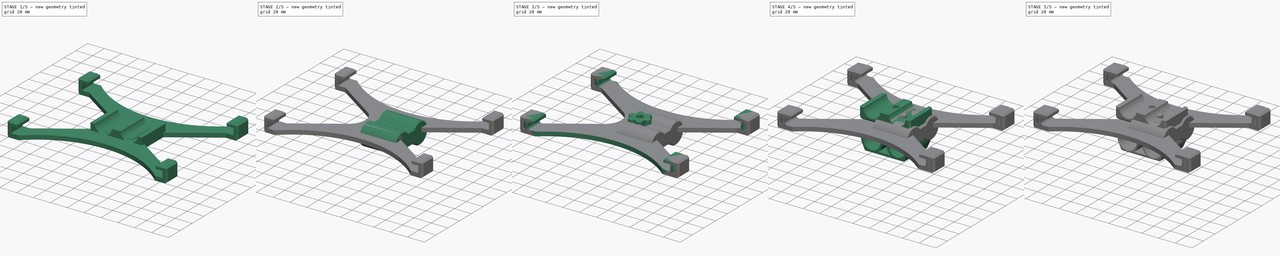
[diagram: build sequence overview — one tinted view per stage of 5, left to right]
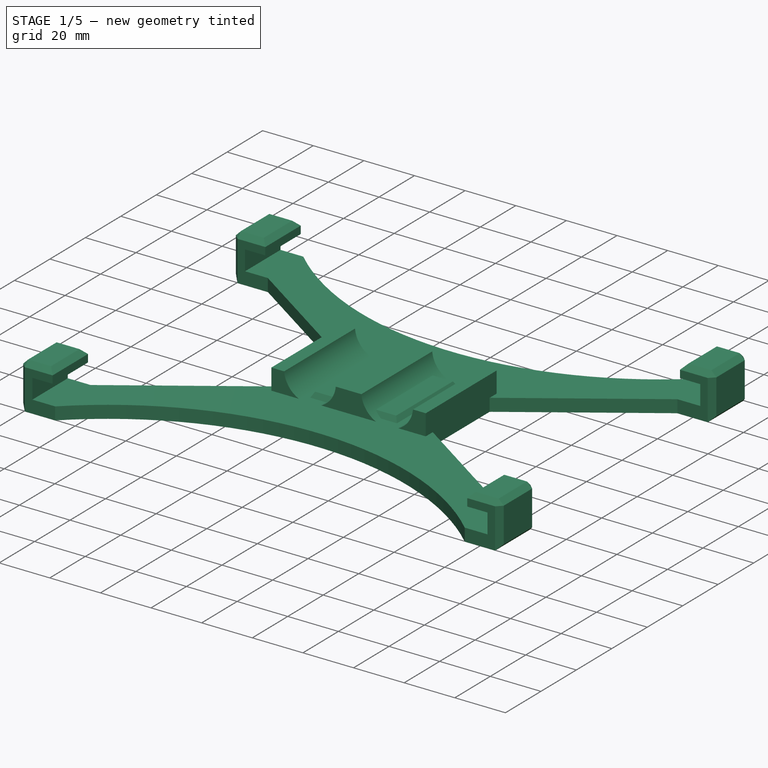
[diagram: stage 1 of 5 — iso view after this stage's code; geometry added in this stage tinted green]
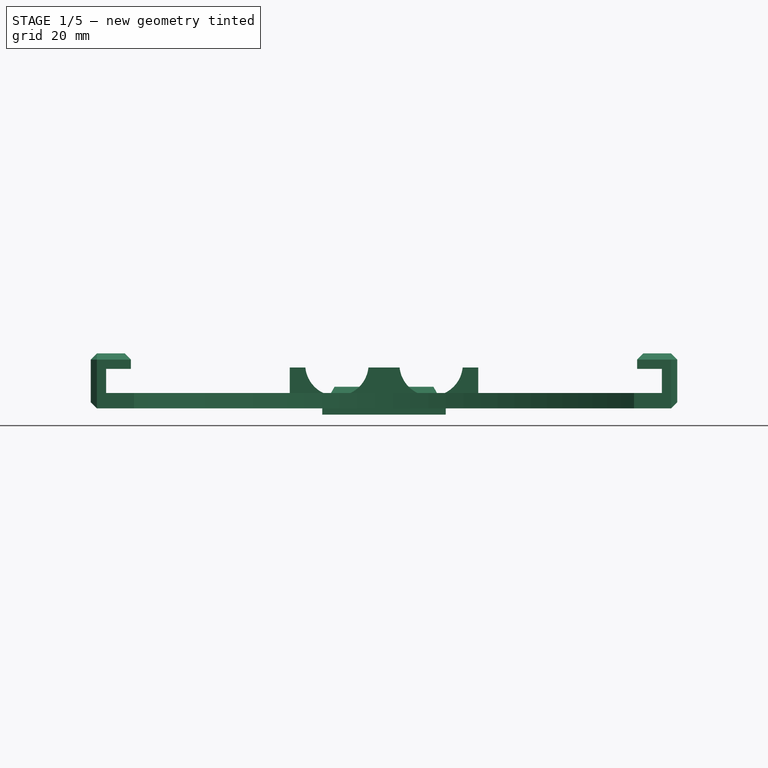
[diagram: stage 1 of 5 — front view after this stage's code; geometry added in this stage tinted green]
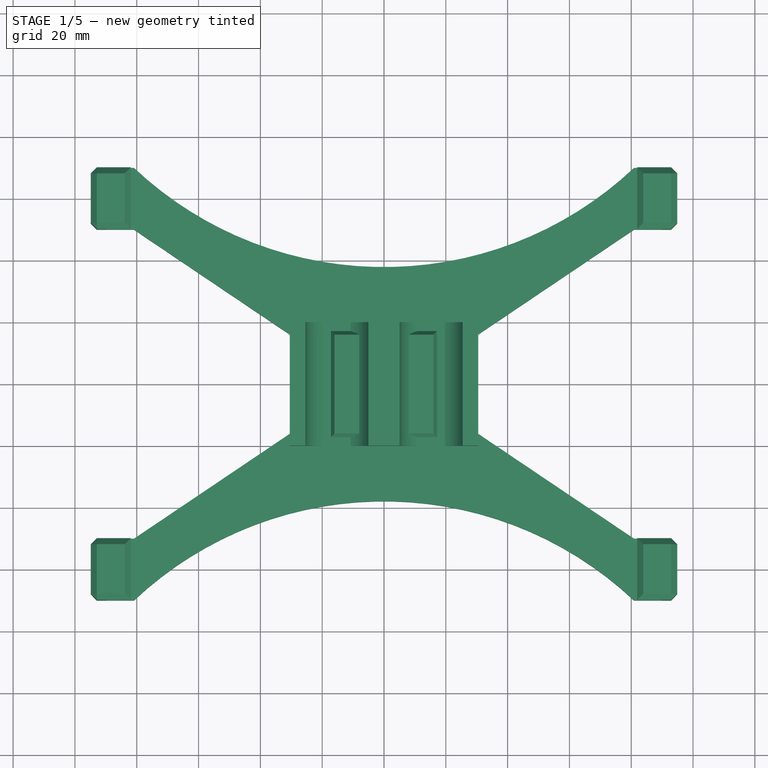
[diagram: stage 1 of 5 — top view after this stage's code; geometry added in this stage tinted green]
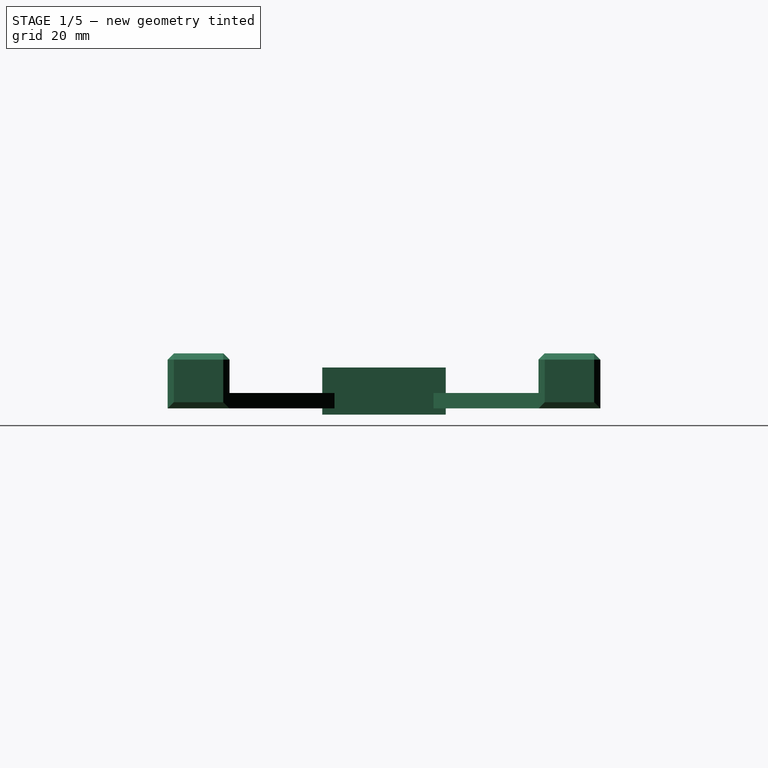
[diagram: stage 1 of 5 — right view after this stage's code; geometry added in this stage tinted green]
FCSTD DOCUMENT  (FreeCAD 2022.1021R26244 +5249 (Git))
Label: photo stand
License: All rights reserved
LicenseURL: http://en.wikipedia.org/wiki/All_rights_reserved
objects: Sketcher::SketchObject×27, PartDesign::Pad×12, PartDesign::Pocket×11, PartDesign::Body×10, PartDesign::Chamfer×6, PartDesign::Plane×5, App::DocumentObjectGroup×5, Part::Fillet×4, Part::Chamfer×3, Part::FeaturePython×3, PartDesign::AdditiveLoft×2, PartDesign::Groove×2, Spreadsheet::Sheet×1, PartDesign::FeatureBase×1, Part::MultiFuse×1, Part::Cut×1, PartDesign::Mirrored×1
note: 185 computed .brp shape members not serialized (recipe doc carries the construction recipe); baked Part::Feature solids carry a one-line shape summary decoded from their .brp

FEATURE [Spreadsheet::Sheet] Spreadsheet  label="dim"
  PythonMode = false
  ShowCells = 0
  TreeRank = 0
  cells = A2=LOCK; A3=base X; B3(lock_base_x)=40; A4=base Y; B4(lock_base_y)=40; A5=base Z; B5(lock_base_z)=2; A6=raise X; B6(lock_raise_x)=32; A7=raise Y; B7(lock_raise_y)=32; A8=raise Z; B8(lock_raise_z)=7; A10=PIPE MOUNT; A11=pipe dia; B11(pipe_dia)==pipe_out_d + 0.5; A12=pipe outer dia; B12(pipe_out_d)=20; A13=pipe inner dia; B13(pipe_inner_d)=18.2; A14=pipe dist; B14(pipe_dist)=10; A15=(pipe outside); B15(pipe_outside)==pipe_dist / 2; A16=mount X; B16(pipe_mount_x)==2 * pipe_dia + pipe_dist + 2 * pipe_outside; A17=mount Y; B17(pipe_mount_y)==lock_base_y; A18=mount base Z; B18(pipe_mount_base_z)=4; A19=mount pipe Z; B19(pipe_mount_pipe_z)==pipe_dia / 2 - 1; A21=PIPE SLIDER; A22=thickness; B22(pipe_slider_thickness)=2.5; A23=width; B23(pipe_slider_width)=40; A25=MOUNT SCREW; A26=M6 head circumradius; B26(mount_screw_M6_head_circrad)=11.3; A27=M6 head depth; B27(mount_screw_M6_head_depth)=5; A28=M6 shank diameter; B28(mount_screw_M6_shank_d)=6.7; A29=M5 head circumradius; B29(mount_screw_M5_head_circrad)=8.9; A30=M5 head depth; B30(mount_screw_M5_head_depth)=4; A31=M5 shank diameter; B31(mount_screw_M5_shank_d)=5; A33=BUTTON; A34=inner diameter; B34(button_d_in)=15; A35=outer diameter; B35(button_d_out)=25; A36=height; B36(button_h)=15; A38=PIPE CAP; A39=thickness; B39(pipe_cap_thick)=2; A40=bridge; B40(pipe_cap_bridge)==pipe_dia * 3 / 4; A41=depth; B41(pipe_cap_depth)=10; A42=gap; B42(pipe_cap_gap)=1; A44=IPAD; A45=height; B45(ipad_height)=169.8; A46=thickness; B46(ipad_thick)=8; A47=ipad10_height; B47(ipad10_height)=179.8; A48=ipad10_thickness; B48(ipad10_thickness)=7.8; A50=IPAD GRAB; A51=width; B51(ipad_grab_width)=20; A52=over; B52(ipad_grab_over)=8; A53=thickness; B53(ipad_grab_thick)=5; A54=distance; B54(ipad_grab_distance)=100; A55=undercut; B55(ipad_grab_undercut)=9; A56=chamfer; B56(ipad_grab_chamfer)=2
FEATURE [Sketcher::SketchObject] Sketch  label="lock base sk"
  ArcFitTolerance = 0
  AttachmentSupport = -> [XY_Plane001]
  ExternalBSplineMaxDegree = 0
  ExternalBSplineTolerance = 0
  FullyConstrained = true
  InternalTolerance = 1e-06
  MakeInternals = false
  MapMode = 5
  Support = -> [XY_Plane001]
  TreeRank = 0
  expr: Constraints[10] = <<dim>>.lock_base_y
  expr: Constraints[9] = <<dim>>.lock_base_x
  sketch-geometry (4):
    g0: LineSegment StartX=-20 StartY=20 StartZ=0 EndX=20 EndY=20 EndZ=0
    g1: LineSegment StartX=20 StartY=20 StartZ=0 EndX=20 EndY=-20 EndZ=0
    g2: LineSegment StartX=20 StartY=-20 StartZ=0 EndX=-20 EndY=-20 EndZ=0
    g3: LineSegment StartX=-20 StartY=-20 StartZ=0 EndX=-20 EndY=20 EndZ=0
  constraints (11):
    c: Coincident(g0,g1)
    c: Coincident(g1,g2)
    c: Coincident(g2,g3)
    c: Coincident(g3,g0)
    c: Horizontal(g0)
    c: Horizontal(g2)
    c: Vertical(g1)
    c: Vertical(g3)
    c: Symmetric(g0,g1,g-1)
    c: DistanceX(g0,g0) = 40
    c: DistanceY(g1,g1) = 40
FEATURE [PartDesign::Pad] Pad  label="lock base"
  AddSubType = 0
  AutoTaperInnerAngle = false
  CheckUpToFaceLimits = true
  ClaimChildren = false
  Direction = (1,1,1)
  Fit = 0
  FitJoin = 0
  InnerFit = 0
  InnerFitJoin = 0
  Length = 2
  Length2 = 100
  NewSolid = false
  Profile = -> Sketch
  Refine = true
  Reversed = true
  Suppress = false
  TaperInnerAngle = 0
  TaperInnerAngleRev = 0
  TreeRank = 0
  Type = 0
  _ProfileBasedVersion = 0
  expr: Length = <<dim>>.lock_base_z
FEATURE [Sketcher::SketchObject] Sketch001  label="lock raise sk"
  ArcFitTolerance = 0
  AttachmentOffset = pos=(0,0,7) rot=(0,0,1;0rad)
  AttachmentSupport = -> [XY_Plane001]
  ExternalBSplineMaxDegree = 0
  ExternalBSplineTolerance = 0
  FullyConstrained = true
  InternalTolerance = 1e-06
  MakeInternals = false
  MapMode = 5
  Placement = pos=(0,0,7) rot=(0,0,1;0rad)
  Support = -> [XY_Plane001]
  TreeRank = 0
  expr: AttachmentOffset.Base.z = <<dim>>.lock_raise_z
  expr: Constraints[10] = <<dim>>.lock_raise_y
  expr: Constraints[9] = <<dim>>.lock_raise_x
  sketch-geometry (4):
    g0: LineSegment StartX=-16 StartY=16 StartZ=0 EndX=16 EndY=16 EndZ=0
    g1: LineSegment StartX=16 StartY=16 StartZ=0 EndX=16 EndY=-16 EndZ=0
    g2: LineSegment StartX=16 StartY=-16 StartZ=0 EndX=-16 EndY=-16 EndZ=0
    g3: LineSegment StartX=-16 StartY=-16 StartZ=0 EndX=-16 EndY=16 EndZ=0
  constraints (11):
    c: Coincident(g0,g1)
    c: Coincident(g1,g2)
    c: Coincident(g2,g3)
    c: Coincident(g3,g0)
    c: Horizontal(g0)
    c: Horizontal(g2)
    c: Vertical(g1)
    c: Vertical(g3)
    c: Symmetric(g0,g1,g-1)
    c: DistanceX(g0,g0) = 32
    c: DistanceY(g1,g1) = 32
FEATURE [PartDesign::AdditiveLoft] AdditiveLoft  label="lock raise"
  AddSubType = 0
  BaseFeature = -> Pad
  ClaimChildren = false
  Closed = true
  Fit = 0
  FitJoin = 0
  InnerFit = 0
  InnerFitJoin = 0
  NewSolid = false
  Profile = -> Sketch
  Refine = true
  Ruled = true
  Sections = -> [Sketch001]
  SplitProfile = false
  Suppress = false
  TreeRank = 0
  _ProfileBasedVersion = 0
FEATURE [PartDesign::Body] Body  label="lock"
  AutoGroupSolids = false
  ClaimAllChildren = false
  ExportMode = 0
  Group = -> [Sketch,Pad,Sketch001,AdditiveLoft]
  Origin = -> Origin001
  Tip = -> AdditiveLoft
  TreeRank = 0
  _ExportChildren = -> [Pad,AdditiveLoft]
  _GroupVersion = 1
FEATURE [Sketcher::SketchObject] Sketch002  label="mount base sk"
  ArcFitTolerance = 0
  AttachmentSupport = -> [XY_Plane]
  ExternalBSplineMaxDegree = 0
  ExternalBSplineTolerance = 0
  FullyConstrained = true
  InternalTolerance = 1e-06
  MakeInternals = false
  MapMode = 5
  Support = -> [XY_Plane]
  TreeRank = 0
  expr: Constraints[10] = <<dim>>.pipe_mount_y
  expr: Constraints[9] = <<dim>>.pipe_mount_x
  sketch-geometry (4):
    g0: LineSegment StartX=-30.5 StartY=20 StartZ=0 EndX=30.5 EndY=20 EndZ=0
    g1: LineSegment StartX=30.5 StartY=20 StartZ=0 EndX=30.5 EndY=-20 EndZ=0
    g2: LineSegment StartX=30.5 StartY=-20 StartZ=0 EndX=-30.5 EndY=-20 EndZ=0
    g3: LineSegment StartX=-30.5 StartY=-20 StartZ=0 EndX=-30.5 EndY=20 EndZ=0
  constraints (11):
    c: Coincident(g0,g1)
    c: Coincident(g1,g2)
    c: Coincident(g2,g3)
    c: Coincident(g3,g0)
    c: Horizontal(g0)
    c: Horizontal(g2)
    c: Vertical(g1)
    c: Vertical(g3)
    c: Symmetric(g0,g1,g-1)
    c: DistanceX(g0,g0) = 61
    c: DistanceY(g1,g1) = 40
FEATURE [PartDesign::Pad] Pad001  label="mount base"
  AddSubType = 0
  AutoTaperInnerAngle = false
  CheckUpToFaceLimits = true
  ClaimChildren = false
  Direction = (1,1,1)
  Fit = 0
  FitJoin = 0
  InnerFit = 0
  InnerFitJoin = 0
  Length = 13.25
  Length2 = 100
  NewSolid = false
  Profile = -> Sketch002
  Refine = true
  Suppress = false
  TaperInnerAngle = 0
  TaperInnerAngleRev = 0
  TreeRank = 0
  Type = 0
  _ProfileBasedVersion = 0
  expr: Length = <<dim>>.pipe_mount_base_z + <<dim>>.pipe_mount_pipe_z
FEATURE [Sketcher::SketchObject] Sketch003  label="pipe pocket sk"
  ArcFitTolerance = 0
  AttachmentSupport = -> [Pad001]
  ExternalBSplineMaxDegree = 0
  ExternalBSplineTolerance = 0
  FullyConstrained = true
  InternalTolerance = 1e-06
  MakeInternals = false
  MapMode = 5
  Placement = pos=(0,-20,0) rot=(1,0,0;1.5708rad)
  Support = -> [Pad001]
  TreeRank = 0
  expr: Constraints[12] = <<dim>>.pipe_mount_base_z + <<dim>>.pipe_dia / 2
  expr: Constraints[3] = <<dim>>.pipe_dia
  expr: Constraints[8] = <<dim>>.pipe_dist
  sketch-geometry (5):
    g0: ArcOfCircle CenterX=-15.25 CenterY=14.25 CenterZ=0 NormalX=0 NormalY=0 NormalZ=1 AngleXU=0 Radius=10.25 StartAngle=3.14159 EndAngle=6.28319
    g1: ArcOfCircle CenterX=15.25 CenterY=14.25 CenterZ=0 NormalX=0 NormalY=0 NormalZ=1 AngleXU=0 Radius=10.25 StartAngle=3.14159 EndAngle=6.28319
    g2: LineSegment [constr] StartX=-5 StartY=14.25 StartZ=0 EndX=5 EndY=14.25 EndZ=0
    g3: LineSegment StartX=-25.5 StartY=14.25 StartZ=0 EndX=-5 EndY=14.25 EndZ=0
    g4: LineSegment StartX=5 StartY=14.25 StartZ=0 EndX=25.5 EndY=14.25 EndZ=0
  constraints (15):
    c: Equal(g0,g1)
    c: Angle(g1) = 3.14159
    c: Angle(g0) = 3.14159
    c: Diameter(g1) = 20.5
    c: Horizontal(g1,g1)
    c: Horizontal(g0,g0)
    c: Symmetric(g1,g0,g-2)
    c: Coincident(g2,g0)
    c: DistanceX(g2,g2) = 10
    c: Coincident(g3,g0)
    c: Coincident(g3,g0)
    c: Coincident(g4,g1)
    c: DistanceY(g-1,g1) = 14.25
    c: Coincident(g4,g1)
    c: Coincident(g2,g1)
FEATURE [PartDesign::Pocket] Pocket  label="pipe pocket"
  AddSubType = 1
  AutoTaperInnerAngle = false
  BaseFeature = -> Pad001
  CheckUpToFaceLimits = true
  ClaimChildren = false
  Fit = 0
  FitJoin = 0
  InnerFit = 0
  InnerFitJoin = 0
  Length = 5
  Length2 = 100
  NewSolid = false
  Profile = -> Sketch003
  Refine = true
  Suppress = false
  TaperInnerAngle = 0
  TaperInnerAngleRev = 0
  TreeRank = 0
  Type = 2
  _ProfileBasedVersion = 0
  _Version = 0
FEATURE [PartDesign::Body] Body005  label="pipe cap"
  AutoGroupSolids = false
  ClaimAllChildren = false
  ExportMode = 0
  Group = -> [DatumPlane001,Sketch011,Pad005,Sketch012,Sketch013,AdditiveLoft001,DatumPlane002,Sketch025,Pad009,Mirrored,Chamfer010]
  Origin = -> Origin005
  Tip = -> Chamfer010
  TreeRank = 2
  _ExportChildren = -> [DatumPlane001,Pad005,AdditiveLoft001,DatumPlane002,Pad009,Mirrored,Chamfer010]
  _GroupVersion = 1
FEATURE [Sketcher::SketchObject] Sketch029
  ArcFitTolerance = 0
  AttachmentSupport = -> [XY_Plane011]
  ExternalBSplineMaxDegree = 0
  ExternalBSplineTolerance = 0
  FullyConstrained = true
  InternalTolerance = 1e-06
  MakeInternals = false
  MapMode = 5
  Support = -> [XY_Plane011]
  TreeRank = 16
  expr: Constraints[10] = 2 * <<dim>>.ipad_grab_width + <<dim>>.ipad_grab_distance
  expr: Constraints[9] = <<dim>>.ipad10_height + 2 * <<dim>>.ipad_grab_thick
  sketch-geometry (4):
    g0: LineSegment StartX=-94.9 StartY=70 StartZ=0 EndX=94.9 EndY=70 EndZ=0
    g1: LineSegment StartX=94.9 StartY=70 StartZ=0 EndX=94.9 EndY=-70 EndZ=0
    g2: LineSegment StartX=94.9 StartY=-70 StartZ=0 EndX=-94.9 EndY=-70 EndZ=0
    g3: LineSegment StartX=-94.9 StartY=-70 StartZ=0 EndX=-94.9 EndY=70 EndZ=0
  constraints (11):
    c: Coincident(g0,g1)
    c: Coincident(g1,g2)
    c: Coincident(g2,g3)
    c: Coincident(g3,g0)
    c: Horizontal(g0)
    c: Horizontal(g2)
    c: Vertical(g1)
    c: Vertical(g3)
    c: Symmetric(g1,g0,g-1)
    c: DistanceX(g0,g0) = 189.8
    c: DistanceY(g1,g1) = 140
FEATURE [PartDesign::Pad] Pad011
  AddSubType = 0
  AlongSketchNormal = false
  AutoTaperInnerAngle = true
  CheckUpToFaceLimits = true
  ClaimChildren = false
  Direction = (0,0,1)
  Fit = 0
  FitJoin = 0
  InnerFit = 0
  InnerFitJoin = 0
  Length = 17.8
  Length2 = 100
  Linearize = true
  NewSolid = false
  Profile = -> Sketch029
  Refine = true
  Suppress = false
  TaperInnerAngle = 0
  TaperInnerAngleRev = 0
  TreeRank = 17
  Type = 0
  _ProfileBasedVersion = 1
  expr: Length = <<dim>>.ipad10_thickness + 2 * <<dim>>.ipad_grab_thick
FEATURE [Sketcher::SketchObject] Sketch030
  ArcFitTolerance = 0
  AttachmentSupport = -> [XZ_Plane011]
  ExternalBSplineMaxDegree = 0
  ExternalBSplineTolerance = 0
  ExternalGeometry = -> [Pad011]
  FullyConstrained = true
  InternalTolerance = 1e-06
  MakeInternals = false
  MapMode = 5
  Placement = pos=(0,0,0) rot=(1,0,0;1.5708rad)
  Support = -> [XZ_Plane011]
  TreeRank = 18
  expr: Constraints[11] = <<dim>>.ipad_grab_over
  expr: Constraints[13] = <<dim>>.ipad_grab_thick
  expr: Constraints[15] = <<Pad011>>.Length
  expr: Constraints[26] = <<dim>>.ipad_grab_thick
  expr: Constraints[27] = <<dim>>.ipad_grab_thick
  expr: Constraints[3] = <<dim>>.ipad_grab_thick
  expr: Constraints[6] = <<dim>>.ipad_grab_over
  expr: Constraints[7] = <<dim>>.ipad_grab_thick
  sketch-geometry (14):
    g0: LineSegment StartX=-81.9 StartY=17.8 StartZ=0 EndX=81.9 EndY=17.8 EndZ=0
    g1: LineSegment StartX=81.9 StartY=17.8 StartZ=0 EndX=81.9 EndY=12.8 EndZ=0
    g2: LineSegment StartX=87.1 StartY=5 StartZ=0 EndX=-87.1 EndY=5 EndZ=0
    g3: LineSegment StartX=81.9 StartY=12.8 StartZ=0 EndX=89.9 EndY=12.8 EndZ=0
    g4: LineSegment StartX=-81.9 StartY=12.8 StartZ=0 EndX=-89.9 EndY=12.8 EndZ=0
    g5: LineSegment StartX=-81.9 StartY=17.8 StartZ=0 EndX=-81.9 EndY=12.8 EndZ=0
    g6: LineSegment StartX=89.9 StartY=12.8 StartZ=0 EndX=89.9 EndY=7.8 EndZ=0
    g7: ArcOfCircle [constr] CenterX=87.1 CenterY=7.8 CenterZ=0 NormalX=0 NormalY=0 NormalZ=1 AngleXU=0 Radius=2.8 StartAngle=4.71239 EndAngle=6.28319
    g8: LineSegment StartX=-89.9 StartY=12.8 StartZ=0 EndX=-89.9 EndY=7.8 EndZ=0
    g9: ArcOfCircle [constr] CenterX=-87.1 CenterY=7.8 CenterZ=0 NormalX=0 NormalY=0 NormalZ=1 AngleXU=0 Radius=2.8 StartAngle=3.14159 EndAngle=4.71239
    g10: LineSegment StartX=87.1 StartY=5 StartZ=0 EndX=89.9 EndY=5 EndZ=0
    g11: LineSegment StartX=89.9 StartY=5 StartZ=0 EndX=89.9 EndY=7.8 EndZ=0
    g12: LineSegment StartX=-89.9 StartY=7.8 StartZ=0 EndX=-89.9 EndY=5 EndZ=0
    g13: LineSegment StartX=-89.9 StartY=5 StartZ=0 EndX=-87.1 EndY=5 EndZ=0
  constraints (38):
    c: Coincident(g0,g1)
    c: Horizontal(g2)
    c: Vertical(g1)
    c: DistanceY(g1,g1) = 5
    c: Coincident(g3,g1)
    c: Horizontal(g3)
    c: DistanceX(g3,g3) = 8
    c: DistanceY(g-1,g2) = 5
    c: Vertical(g5)
    c: Coincident(g4,g5)
    c: Horizontal(g4)
    c: DistanceX(g4,g4) = 8
    c: Coincident(g0,g5)
    c: DistanceY(g5,g5) = 5
    c: Horizontal(g0)
    c: DistanceY(g-3,g0) = 17.8
    c: Coincident(g6,g3)
    c: Vertical(g6)
    c: Tangent(g7,g2) = 1.5708
    c: Tangent(g7,g6) = 1.5708
    c: Coincident(g8,g4)
    c: Equal(g8,g5)
    c: Tangent(g9,g2) = 1.5708
    c: Vertical(g8)
    c: Tangent(g9,g8) = -1.5708
    c: Equal(g6,g1)
    c: DistanceX(g6,g-3) = 5
    c: DistanceX(g-3,g8) = 5
    c: Coincident(g10,g2)
    c: Horizontal(g10)
    c: Coincident(g11,g10)
    c: Coincident(g11,g6)
    c: Vertical(g11)
    c: Coincident(g12,g8)
    c: Vertical(g12)
    c: Coincident(g13,g12)
    c: Coincident(g13,g2)
    c: Horizontal(g13)
FEATURE [PartDesign::Pocket] Pocket011
  AddSubType = 1
  AutoTaperInnerAngle = true
  BaseFeature = -> Pad011
  CheckUpToFaceLimits = true
  ClaimChildren = false
  Fit = 0
  FitJoin = 0
  InnerFit = 0
  InnerFitJoin = 0
  Length = 5
  Length2 = 100
  Linearize = true
  Midplane = true
  NewSolid = false
  Profile = -> Sketch030
  Refine = true
  Suppress = false
  TaperInnerAngle = 0
  TaperInnerAngleRev = 0
  TreeRank = 19
  Type = 1
  _ProfileBasedVersion = 1
  _Version = 1
FEATURE [Sketcher::SketchObject] Sketch020005
  ArcFitTolerance = 1e-06
  AttachmentSupport = -> [Pocket011]
  ExternalBSplineMaxDegree = 5
  ExternalBSplineTolerance = 0.0001
  ExternalGeometry = -> [Pocket011]
  FullyConstrained = true
  InternalTolerance = 1e-06
  MakeInternals = false
  MapMode = 5
  Placement = pos=(0,1.1e-15,5) rot=(0,0,1;0rad)
  Support = -> [Pocket011]
  TreeRank = 36
  expr: Constraints[24] = <<dim>>.ipad_height / 4
  expr: Constraints[25] = <<dim>>.pipe_slider_width / 4
  expr: Constraints[7] = <<dim>>.ipad_grab_width
  expr: Constraints[8] = <<dim>>.ipad_grab_undercut + <<dim>>.ipad_grab_thick
  sketch-geometry (18):
    g0: LineSegment StartX=80.9 StartY=-70 StartZ=0 EndX=-80.9 EndY=-70 EndZ=0
    g1: ArcOfCircle CenterX=6.9e-15 CenterY=-155.902 CenterZ=0 NormalX=0 NormalY=0 NormalZ=1 AngleXU=3.14159 Radius=118 StartAngle=3.95697 EndAngle=5.46781
    g2: LineSegment StartX=-80.9 StartY=50 StartZ=0 EndX=-31.2798 EndY=16.5899 EndZ=0
    g3: ArcOfCircle CenterX=-42.45 CenterY=0 CenterZ=0 NormalX=0 NormalY=0 NormalZ=1 AngleXU=3.14159 Radius=20 StartAngle=2.16339 EndAngle=4.1198
    g4: LineSegment StartX=-31.2798 StartY=-16.5899 StartZ=0 EndX=-80.9 EndY=-50 EndZ=0
    g5: LineSegment StartX=94.9 StartY=-50 StartZ=0 EndX=94.9 EndY=50 EndZ=0
    g6: ArcOfCircle CenterX=42.45 CenterY=0 CenterZ=0 NormalX=0 NormalY=0 NormalZ=1 AngleXU=3.14159 Radius=20 StartAngle=5.30498 EndAngle=7.26139
    g7: LineSegment StartX=31.2798 StartY=16.5899 StartZ=0 EndX=80.9 EndY=50 EndZ=0
    g8: LineSegment StartX=80.9 StartY=50 StartZ=0 EndX=94.9 EndY=50 EndZ=0
    g9: LineSegment StartX=94.9 StartY=-50 StartZ=0 EndX=80.9 EndY=-50 EndZ=0
    g10: LineSegment StartX=80.9 StartY=-50 StartZ=0 EndX=31.2798 EndY=-16.5899 EndZ=0
    g11: Circle CenterX=0 CenterY=-10 CenterZ=0 NormalX=0 NormalY=0 NormalZ=-1 AngleXU=1e-16 Radius=1.5
    g12: Circle CenterX=0 CenterY=10 CenterZ=0 NormalX=0 NormalY=0 NormalZ=-1 AngleXU=1e-16 Radius=1.5
    g13: LineSegment StartX=80.9 StartY=70 StartZ=0 EndX=-80.9 EndY=70 EndZ=0
    g14: ArcOfCircle CenterX=-6.8e-15 CenterY=155.902 CenterZ=0 NormalX=0 NormalY=0 NormalZ=1 AngleXU=3.14159 Radius=118 StartAngle=0.815378 EndAngle=2.32621
    g15: LineSegment StartX=-80.9 StartY=50 StartZ=0 EndX=-94.9 EndY=50 EndZ=0
    g16: LineSegment StartX=-94.9 StartY=50 StartZ=0 EndX=-94.9 EndY=-50 EndZ=0
    g17: LineSegment StartX=-94.9 StartY=-50 StartZ=0 EndX=-80.9 EndY=-50 EndZ=0
  constraints (49):
    c: Coincident(g0,g1)
    c: Horizontal(g8)
    c: Horizontal(g9)
    c: Coincident(g9,g10)
    c: Coincident(g13,g14)
    c: Coincident(g14,g13)
    c: Horizontal(g-4,g13)
    c: DistanceY(g8,g-4) = 20
    c: DistanceX(g8,g8) = 14
    c: Symmetric(g13,g13,g-2)
    c: Vertical(g13,g7)
    c: Vertical(g7,g9)
    c: Vertical(g9,g0)
    c: Vertical(g13,g2)
    c: Vertical(g2,g4)
    c: Vertical(g4,g0)
    c: Radius(g3) = 20
    c: Equal(g3,g6)
    c: Equal(g1,g14)
    c: Radius(g1) = 118
    c: Tangent(g10,g6) = 1.5708
    c: Tangent(g6,g7) = 1.5708
    c: Tangent(g2,g3) = 1.5708
    c: Tangent(g3,g4) = 1.5708
    c: DistanceX(g3,g-1) = 42.45
    c: DistanceY(g-1,g12) = 10
    c: Horizontal(g3,g-1)
    c: Symmetric(g3,g6,g-1)
    c: Horizontal(g7,g2)
    c: Horizontal(g4,g9)
    c: Horizontal(g0,g-3)
    c: Coincident(g0,g1)
    c: Horizontal(g0,g-3)
    c: Coincident(g7,g8)
    c: Coincident(g15,g16)
    c: Coincident(g16,g17)
    c: Coincident(g4,g17)
    c: Coincident(g2,g15)
    c: Symmetric(g15,g5,g-2)
    c: Vertical(g16)
    c: Horizontal(g17)
    c: Coincident(g5,g8)
    c: Coincident(g5,g9)
    c: Vertical(g5,g-4)
    c: Symmetric(g5,g5,g-1)
    c: Equal(g12,g11)
    c: Diameter(g12) = 3
    c: Vertical(g12,g-1)
    c: Symmetric(g12,g11,g-1)
FEATURE [PartDesign::Pocket] Pocket012
  AddSubType = 1
  AutoTaperInnerAngle = true
  BaseFeature = -> Pocket011
  CheckUpToFaceLimits = true
  ClaimChildren = false
  Fit = 0
  FitJoin = 0
  InnerFit = 0
  InnerFitJoin = 0
  Length = 5
  Length2 = 100
  Linearize = true
  Midplane = true
  NewSolid = false
  Profile = -> Sketch020005
  Refine = true
  Suppress = false
  TaperInnerAngle = 0
  TaperInnerAngleRev = 0
  TreeRank = 37
  Type = 1
  _ProfileBasedVersion = 1
  _Version = 1
FEATURE [PartDesign::Chamfer] Chamfer011
  AddSubType = 0
  Angle = 45
  Base = -> Pocket012 [Edge50,Edge51]
  BaseFeature = -> Pocket012
  ChamferType = 0
  FlipDirection = false
  NewSolid = false
  Refine = true
  Size = 2
  Size2 = 1
  SupportTransform = false
  Suppress = false
  TreeRank = 38
FEATURE [PartDesign::Chamfer] Chamfer012
  AddSubType = 0
  Angle = 45
  Base = -> Chamfer011 [Face26,Face29,Face33,Face32,Face35,Face34,Face41,Face38]
  BaseFeature = -> Chamfer011
  ChamferType = 0
  FlipDirection = false
  NewSolid = false
  Refine = true
  Size = 2
  Size2 = 1
  SupportTransform = false
  Suppress = false
  TreeRank = 39
FEATURE [PartDesign::Body] Body011  label="iPad 10 holder"
  AutoGroupSolids = false
  ClaimAllChildren = false
  ExportMode = 0
  Group = -> [Sketch029,Pad011,Sketch030,Pocket011,Sketch020005,Pocket012,Chamfer011,Chamfer012]
  Origin = -> Origin011
  Tip = -> Chamfer012
  TreeRank = 15
  _ExportChildren = -> [Pad011,Pocket011,Pocket012,Chamfer011,Chamfer012]
  _GroupVersion = 1
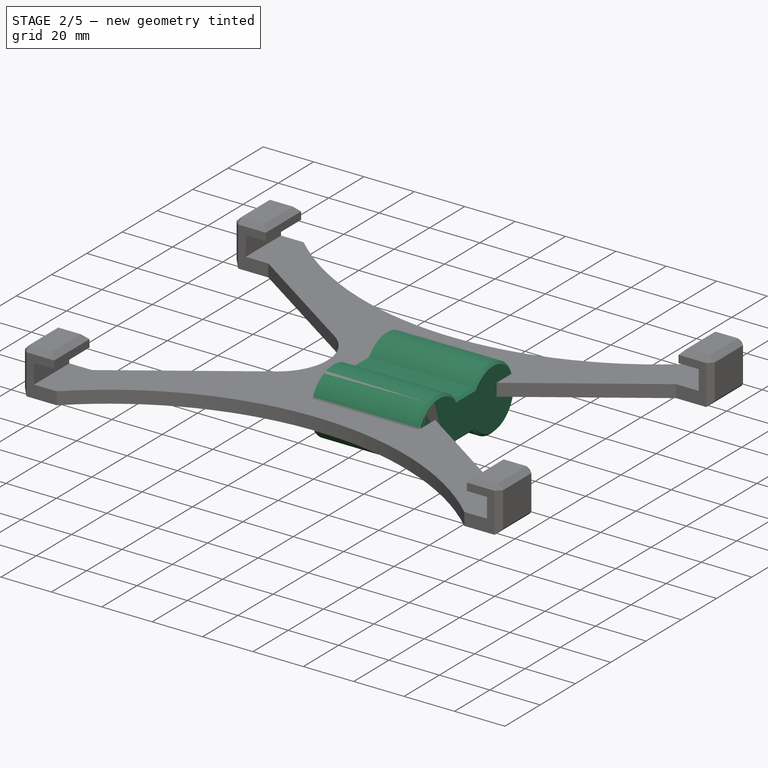
[diagram: stage 2 of 5 — iso view after this stage's code; geometry added in this stage tinted green]
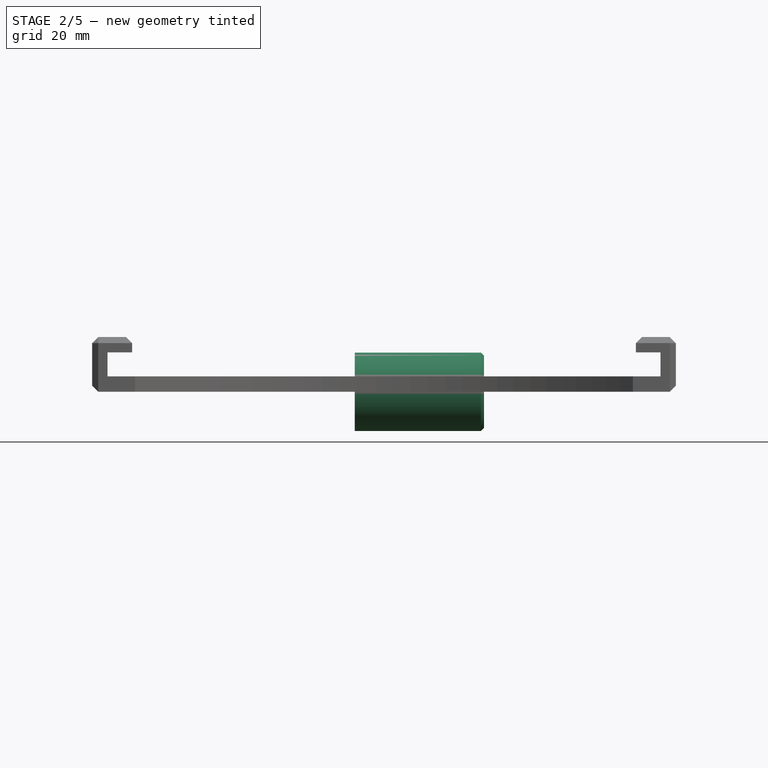
[diagram: stage 2 of 5 — front view after this stage's code; geometry added in this stage tinted green]
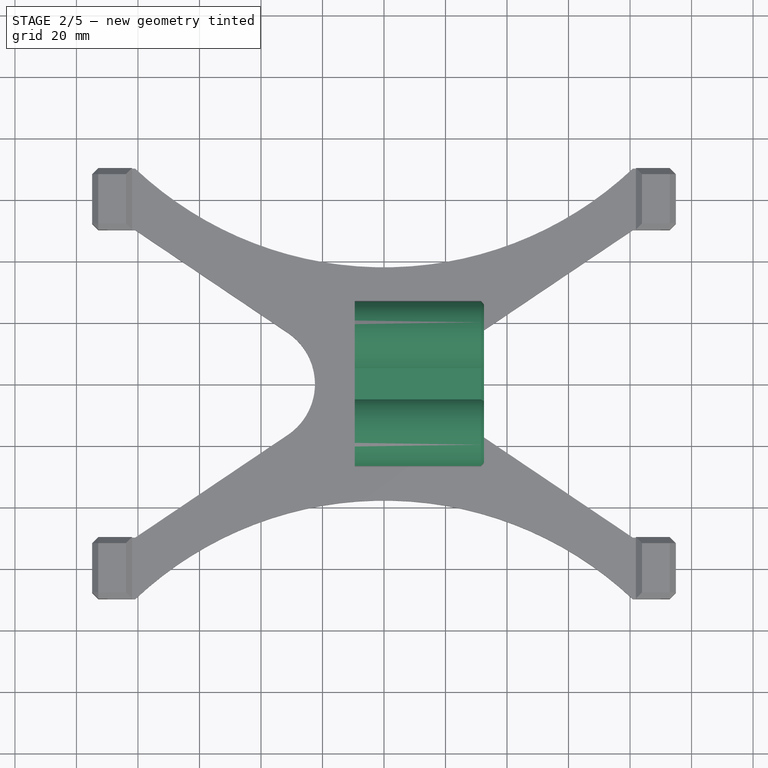
[diagram: stage 2 of 5 — top view after this stage's code; geometry added in this stage tinted green]
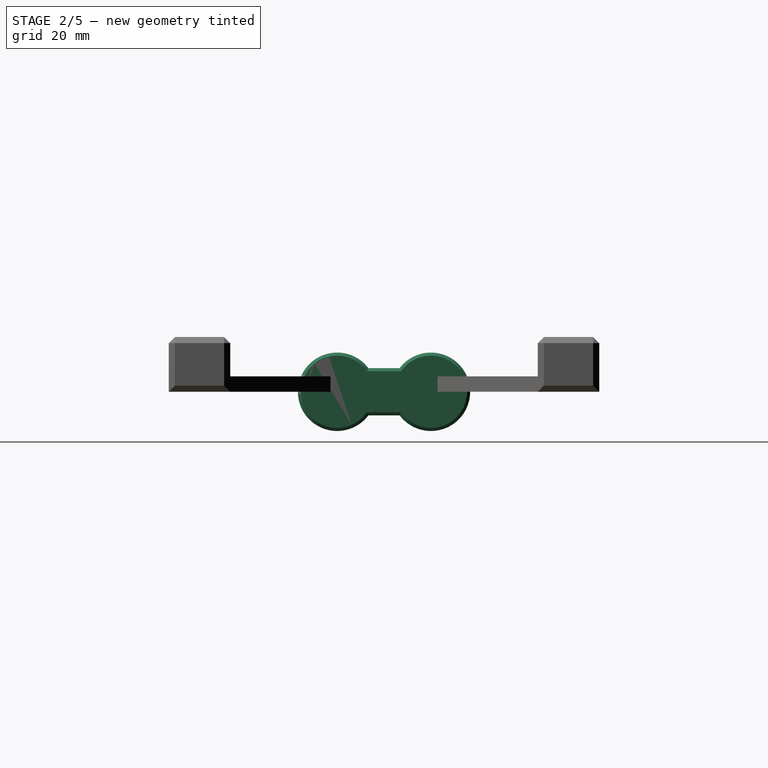
[diagram: stage 2 of 5 — right view after this stage's code; geometry added in this stage tinted green]
FEATURE [Sketcher::SketchObject] Sketch005  label="mount screw head sk"
  ArcFitTolerance = 0
  AttachmentSupport = -> [XY_Plane003]
  ExternalBSplineMaxDegree = 0
  ExternalBSplineTolerance = 0
  FullyConstrained = true
  InternalTolerance = 1e-06
  MakeInternals = false
  MapMode = 5
  Support = -> [XY_Plane003]
  TreeRank = 0
  expr: Constraints[19] = Spreadsheet.mount_screw_M6_head_circrad
  sketch-geometry (7):
    g0: LineSegment StartX=5.65 StartY=0 StartZ=0 EndX=2.825 EndY=4.89304 EndZ=0
    g1: LineSegment StartX=2.825 StartY=4.89304 StartZ=0 EndX=-2.825 EndY=4.89304 EndZ=0
    g2: LineSegment StartX=-2.825 StartY=4.89304 StartZ=0 EndX=-5.65 EndY=-9e-16 EndZ=0
    g3: LineSegment StartX=-5.65 StartY=-9e-16 StartZ=0 EndX=-2.825 EndY=-4.89304 EndZ=0
    g4: LineSegment StartX=-2.825 StartY=-4.89304 StartZ=0 EndX=2.825 EndY=-4.89304 EndZ=0
    g5: LineSegment StartX=2.825 StartY=-4.89304 StartZ=0 EndX=5.65 EndY=0 EndZ=0
    g6: Circle [constr] CenterX=0 CenterY=0 CenterZ=0 NormalX=0 NormalY=0 NormalZ=1 AngleXU=0 Radius=5.65
  constraints (16):
    c: Coincident(g0,g1)
    c: Coincident(g1,g2)
    c: Coincident(g2,g3)
    c: Coincident(g3,g4)
    c: Coincident(g4,g5)
    c: Coincident(g5,g0)
    c: Equal(g0, g1-g5) x5
    c: PointOnObject(g0,g6)
    c: PointOnObject(g1,g6)
    c: PointOnObject(g2,g6)
    c: PointOnObject(g3,g6)
    c: PointOnObject(g4,g6)
    c: PointOnObject(g5,g6)
    c: Coincident(g6,g-1)
    c: Horizontal(g1)
    c: Diameter(g6) = 11.3
FEATURE [PartDesign::Pad] Pad002
  AddSubType = 0
  AutoTaperInnerAngle = false
  CheckUpToFaceLimits = true
  ClaimChildren = false
  Direction = (1,1,1)
  Fit = 0
  FitJoin = 0
  InnerFit = 0
  InnerFitJoin = 0
  Length = 5
  Length2 = 100
  NewSolid = false
  Profile = -> Sketch005
  Refine = true
  Suppress = false
  TaperInnerAngle = 0
  TaperInnerAngleRev = 0
  TreeRank = 0
  Type = 0
  _ProfileBasedVersion = 0
  expr: Length = Spreadsheet.mount_screw_M6_head_depth
FEATURE [Sketcher::SketchObject] Sketch006
  ArcFitTolerance = 0
  AttachmentSupport = -> [Pad002]
  ExternalBSplineMaxDegree = 0
  ExternalBSplineTolerance = 0
  FullyConstrained = true
  InternalTolerance = 1e-06
  MakeInternals = false
  MapMode = 5
  Placement = pos=(0,0,5) rot=(0,0,1;0rad)
  Support = -> [Pad002]
  TreeRank = 0
  expr: Constraints[1] = Spreadsheet.mount_screw_M6_shank_d
  sketch-geometry (1):
    g0: Circle CenterX=0 CenterY=0 CenterZ=0 NormalX=0 NormalY=0 NormalZ=1 AngleXU=0 Radius=3.35
  constraints (2):
    c: Coincident(g0,g-1)
    c: Diameter(g0) = 6.7
FEATURE [PartDesign::Pad] Pad003
  AddSubType = 0
  AutoTaperInnerAngle = false
  BaseFeature = -> Pad002
  CheckUpToFaceLimits = true
  ClaimChildren = false
  Direction = (1,1,1)
  Fit = 0
  FitJoin = 0
  InnerFit = 0
  InnerFitJoin = 0
  Length = 22.25
  Length2 = 100
  NewSolid = false
  Profile = -> Sketch006
  Refine = true
  Suppress = false
  TaperInnerAngle = 0
  TaperInnerAngleRev = 0
  TreeRank = 0
  Type = 0
  _ProfileBasedVersion = 0
  expr: Length = <<dim>>.lock_raise_z + <<dim>>.lock_base_z + <<dim>>.pipe_mount_base_z + <<dim>>.pipe_mount_pipe_z
FEATURE [PartDesign::Body] Body003  label="mount screw hole"
  AutoGroupSolids = false
  ClaimAllChildren = false
  ExportMode = 0
  Group = -> [Sketch005,Pad002,Sketch006,Pad003]
  Origin = -> Origin003
  Placement = pos=(0,0,-2) rot=(0,0,1;0rad)
  Tip = -> Pad003
  TreeRank = 0
  _ExportChildren = -> [Pad002,Pad003]
  _GroupVersion = 1
  expr: Placement.Base.z = -<<dim>>.lock_base_z
FEATURE [Part::MultiFuse] Fusion  label="lock and pipe mount"
  Refine = true
  Shapes = -> [Body,Body001]
  TreeRank = 0
FEATURE [Part::Cut] Cut  label="lock and pipe mount with hole"
  Base = -> Fusion
  Refine = true
  Tool = -> Body003
  TreeRank = 0
FEATURE [PartDesign::Body] Body002  label="pipe lock"
  AutoGroupSolids = false
  BaseFeature = -> Body001
  ClaimAllChildren = false
  ExportMode = 0
  Group = -> [Clone,DatumPlane,Sketch007,Pocket001,Chamfer]
  Origin = -> Origin002
  Placement = pos=(0,0,50) rot=(1,0,0;3.14159rad)
  Tip = -> Chamfer
  TreeRank = 0
  _ExportChildren = -> [Clone,DatumPlane,Pocket001,Chamfer]
  _GroupVersion = 1
FEATURE [Part::Chamfer] Chamfer001  label="lock and pipe"
  Base = -> Cut
  EdgeLinks = -> Cut [Edge1,Edge2,Edge8,Edge9,Edge10,Edge11,Edge16,Edge29]
  Edges = 8 edges r=2: [Edge1,Edge2,Edge8,Edge9,Edge10,Edge11,Edge16,Edge29]
  TreeRank = 0
FEATURE [PartDesign::Plane] DatumPlane001
  AttachmentSupport = -> [Chamfer001]
  Length = 10
  MapMode = 5
  MinimumLength = 10
  MinimumWidth = 10
  Placement = pos=(30.5,0,0) rot=(0.57735,0.57735,0.57735;2.0944rad)
  ResizeMode = 0
  Support = -> [Chamfer001]
  TreeRank = 0
  Width = 10
FEATURE [Sketcher::SketchObject] Sketch011
  ArcFitTolerance = 0
  AttachmentSupport = -> [DatumPlane001]
  ExternalBSplineMaxDegree = 0
  ExternalBSplineTolerance = 0
  FullyConstrained = true
  InternalTolerance = 1e-06
  MakeInternals = false
  MapMode = 5
  Placement = pos=(30.5,0,0) rot=(0.57735,0.57735,0.57735;2.0944rad)
  Support = -> [DatumPlane001]
  TreeRank = 0
  expr: Constraints[13] = <<dim>>.pipe_dist / 2 + <<dim>>.pipe_dia / 2
  expr: Constraints[14] = <<dim>>.pipe_dia + <<dim>>.pipe_slider_thickness * 2
  expr: Constraints[5] = <<dim>>.pipe_cap_bridge
  sketch-geometry (5):
    g0: ArcOfCircle CenterX=15.25 CenterY=0 CenterZ=0 NormalX=0 NormalY=0 NormalZ=1 AngleXU=0 Radius=12.75 StartAngle=3.78878 EndAngle=8.7776
    g1: LineSegment StartX=0 StartY=7.6875 StartZ=0 EndX=5.07823 EndY=7.6875 EndZ=0
    g2: LineSegment StartX=5.07823 StartY=-7.6875 StartZ=0 EndX=0 EndY=-7.6875 EndZ=0
    g3: LineSegment StartX=0 StartY=7.6875 StartZ=0 EndX=0 EndY=-7.6875 EndZ=0
    g4: GeomPoint [constr] X=28 Y=0 Z=0
  constraints (15):
    c: Horizontal(g1)
    c: Horizontal(g2)
    c: Coincident(g0,g2)
    c: Coincident(g0,g1)
    c: Vertical(g2,g1)
    c: DistanceY(g2,g1) = 15.375
    c: PointOnObject(g1,g-2)
    c: Coincident(g3,g1)
    c: Coincident(g3,g2)
    c: Vertical(g0,g0)
    c: PointOnObject(g0,g-1)
    c: PointOnObject(g4,g0)
    c: PointOnObject(g4,g-1)
    c: DistanceX(g-1,g0) = 15.25
    c: Diameter(g0) = 25.5
FEATURE [PartDesign::Pad] Pad005  label="base"
  AddSubType = 0
  AutoTaperInnerAngle = false
  CheckUpToFaceLimits = true
  ClaimChildren = false
  Direction = (1,1,1)
  Fit = 0
  FitJoin = 0
  InnerFit = 0
  InnerFitJoin = 0
  Length = 2
  Length2 = 100
  NewSolid = false
  Placement = pos=(30.5,0,0) rot=(0.57735,0.57735,0.57735;2.0944rad)
  Profile = -> Sketch011
  Refine = true
  Suppress = false
  TaperInnerAngle = 0
  TaperInnerAngleRev = 0
  TreeRank = 0
  Type = 0
  _ProfileBasedVersion = 0
  expr: Length = <<dim>>.pipe_cap_thick
FEATURE [Sketcher::SketchObject] Sketch012
  ArcFitTolerance = 0
  AttachmentSupport = -> [Pad005]
  ExternalBSplineMaxDegree = 0
  ExternalBSplineTolerance = 0
  ExternalGeometry = -> [Pad005]
  FullyConstrained = true
  InternalTolerance = 1e-06
  MakeInternals = false
  MapMode = 5
  Placement = pos=(30.5,0,0) rot=(0.57735,0.57735,-0.57735;4.18879rad)
  Support = -> [Pad005]
  TreeRank = 0
  expr: Constraints[1] = <<dim>>.pipe_inner_d
  sketch-geometry (1):
    g0: Circle CenterX=15.25 CenterY=0 CenterZ=0 NormalX=0 NormalY=0 NormalZ=1 AngleXU=0 Radius=9.1
  constraints (2):
    c: Coincident(g0,g-3)
    c: Diameter(g0) = 18.2
FEATURE [Sketcher::SketchObject] Sketch013
  ArcFitTolerance = 0
  AttachmentOffset = pos=(0,0,10) rot=(0,0,1;0rad)
  AttachmentSupport = -> [Pad005]
  ExternalBSplineMaxDegree = 0
  ExternalBSplineTolerance = 0
  ExternalGeometry = -> [Sketch012]
  FullyConstrained = true
  InternalTolerance = 1e-06
  MakeInternals = false
  MapMode = 5
  Placement = pos=(20.5,0,0) rot=(0.57735,0.57735,-0.57735;4.18879rad)
  Support = -> [Pad005]
  TreeRank = 0
  expr: AttachmentOffset.Base.z = <<dim>>.pipe_cap_depth
  expr: Constraints[1] = <<dim>>.pipe_inner_d * 0.95
  sketch-geometry (1):
    g0: Circle CenterX=15.25 CenterY=0 CenterZ=0 NormalX=0 NormalY=0 NormalZ=1 AngleXU=0 Radius=8.645
  constraints (2):
    c: Coincident(g0,g-3)
    c: Diameter(g0) = 17.29
FEATURE [PartDesign::AdditiveLoft] AdditiveLoft001
  AddSubType = 0
  BaseFeature = -> Pad005
  ClaimChildren = false
  Closed = false
  Fit = 0
  FitJoin = 0
  InnerFit = 0
  InnerFitJoin = 0
  NewSolid = false
  Placement = pos=(30.5,0,0) rot=(0.57735,0.57735,0.57735;2.0944rad)
  Profile = -> Sketch012
  Refine = true
  Ruled = false
  Sections = -> [Sketch013]
  SplitProfile = false
  Suppress = false
  TreeRank = 0
  _ProfileBasedVersion = 0
FEATURE [App::DocumentObjectGroup] Group  label="pipe slide mount"
  ClaimAllChildren = true
  ExportMode = 1
  Group = -> [Body009,GrExplode_Slice,Chamfer006,Chamfer007]
  TreeRank = 0
  _GroupVersion = 1
FEATURE [App::DocumentObjectGroup] Group001  label="lock button M6"
  ClaimAllChildren = true
  ExportMode = 1
  Group = -> [Body004,Fillet001]
  TreeRank = 0
  _GroupVersion = 1
FEATURE [App::DocumentObjectGroup] Group002  label="lock + pipe mount"
  ClaimAllChildren = true
  ExportMode = 1
  Group = -> [Body002,Chamfer001]
  TreeRank = 0
  _GroupVersion = 1
FEATURE [Sketcher::SketchObject] Sketch025
  ArcFitTolerance = 0
  AttachmentSupport = -> [DatumPlane002]
  ExternalBSplineMaxDegree = 0
  ExternalBSplineTolerance = 0
  ExternalGeometry = -> [Sketch011]
  FullyConstrained = true
  InternalTolerance = 1e-06
  MakeInternals = false
  MapMode = 5
  Placement = pos=(30.5,15.25,0) rot=(0.707107,0,-0.707107;3.14159rad)
  Support = -> [DatumPlane002]
  TreeRank = 0
  expr: Constraints[0] = <<dim>>.pipe_dia
  sketch-geometry (1):
    g0: Circle CenterX=2.2e-15 CenterY=-1.1e-15 CenterZ=0 NormalX=0 NormalY=0 NormalZ=1 AngleXU=0 Radius=10.25
  constraints (2):
    c: Diameter(g0) = 20.5
    c: Coincident(g0,g-3)
FEATURE [PartDesign::Pad] Pad009
  AddSubType = 0
  AutoTaperInnerAngle = false
  BaseFeature = -> AdditiveLoft001
  CheckUpToFaceLimits = true
  ClaimChildren = false
  Direction = (-1,1e-16,-2e-16)
  Fit = 0
  FitJoin = 0
  InnerFit = 0
  InnerFitJoin = 0
  Length = 40
  Length2 = 100
  NewSolid = false
  Profile = -> Sketch025
  Refine = true
  Suppress = false
  TaperInnerAngle = 0
  TaperInnerAngleRev = 0
  TreeRank = 0
  Type = 0
  _ProfileBasedVersion = 0
  expr: Length = <<dim>>.pipe_slider_width
FEATURE [PartDesign::Body] Body007  label="iPad holder"
  AutoGroupSolids = false
  ClaimAllChildren = false
  ExportMode = 0
  Group = -> [Sketch017,Sketch019,Pad006,Pocket005,Sketch020,Pocket006,Chamfer004,Chamfer009]
  Origin = -> Origin007
  Tip = -> Chamfer009
  TreeRank = 0
  _ExportChildren = -> [Pad006,Pocket005,Pocket006,Chamfer004,Chamfer009]
  _GroupVersion = 1
FEATURE [PartDesign::Mirrored] Mirrored
  AddSubType = 0
  BaseFeature = -> Pad009
  CopyShape = false
  MirrorPlane = -> XZ_Plane005
  NewSolid = false
  OriginalSubs = -> [Pad009,AdditiveLoft001,Pad005]
  Originals = -> [Pad009,AdditiveLoft001,Pad005]
  ParallelTransform = true
  Refine = true
  SubTransform = true
  Suppress = false
  TreeRank = 1
  _Version = 3
FEATURE [PartDesign::Chamfer] Chamfer010
  AddSubType = 0
  Angle = 45
  Base = -> Mirrored [Edge7,Edge6,Edge2,Edge5,Edge13,Edge14]
  BaseFeature = -> Mirrored
  ChamferType = 0
  FlipDirection = false
  NewSolid = false
  Refine = true
  Size = 1
  Size2 = 1
  SupportTransform = false
  Suppress = false
  TreeRank = 3
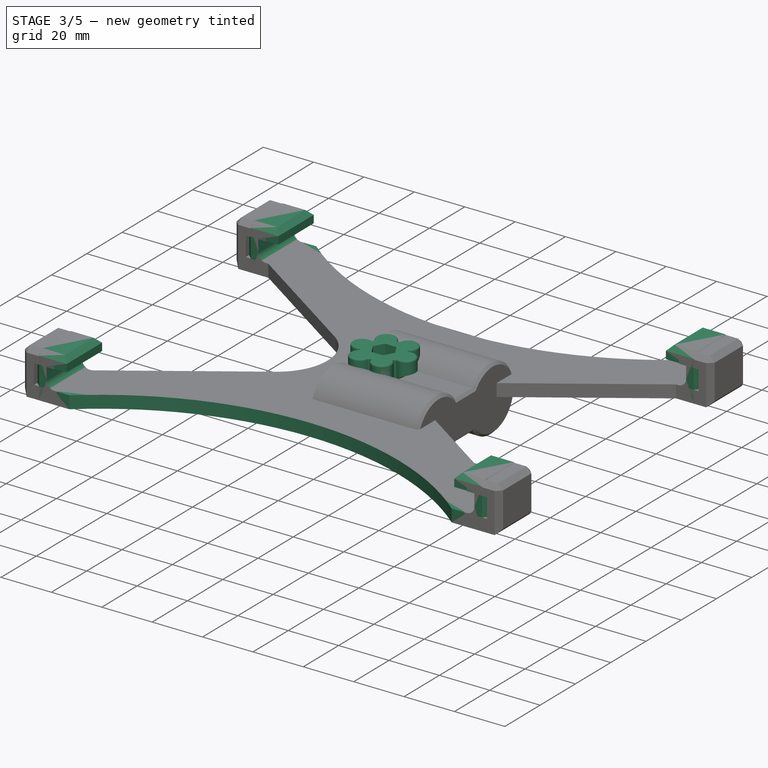
[diagram: stage 3 of 5 — iso view after this stage's code; geometry added in this stage tinted green]
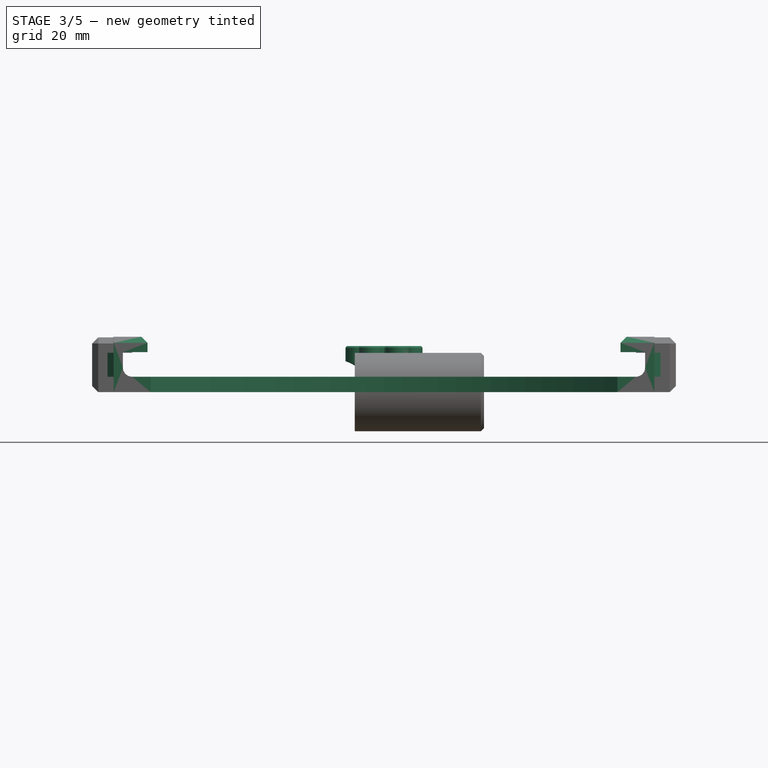
[diagram: stage 3 of 5 — front view after this stage's code; geometry added in this stage tinted green]
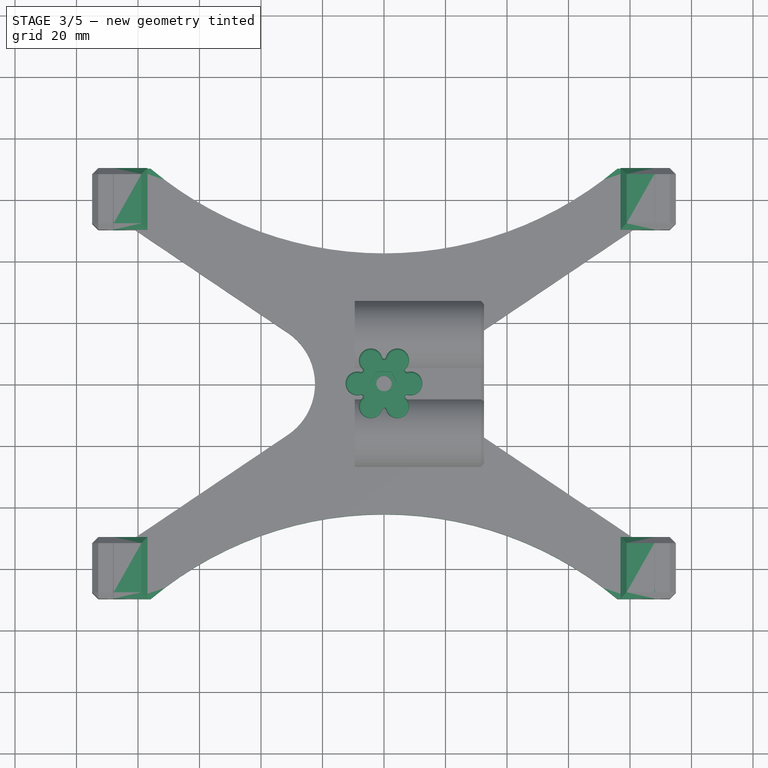
[diagram: stage 3 of 5 — top view after this stage's code; geometry added in this stage tinted green]
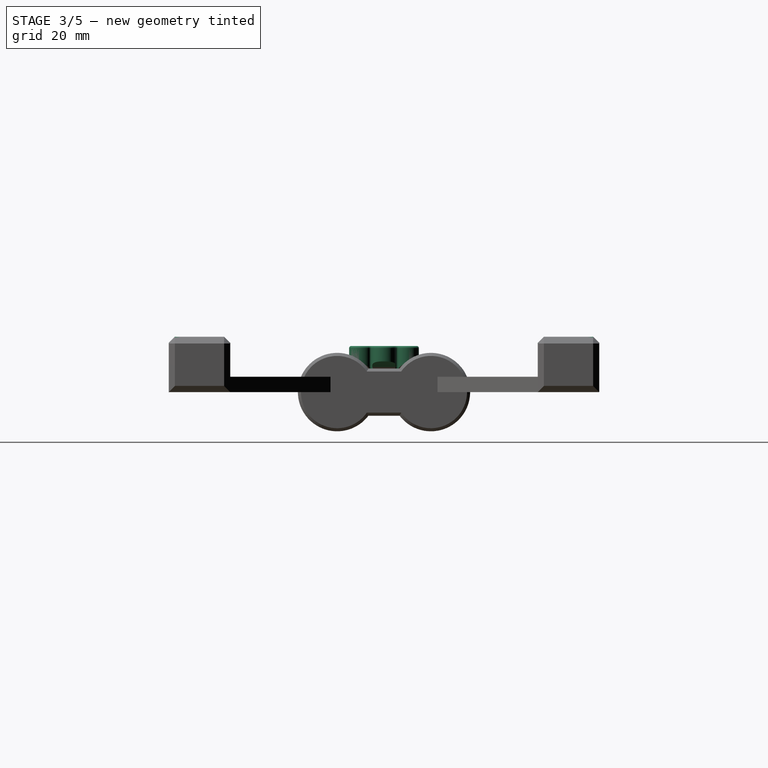
[diagram: stage 3 of 5 — right view after this stage's code; geometry added in this stage tinted green]
FEATURE [PartDesign::Plane] DatumPlane002
  AttachmentSupport = -> [AdditiveLoft001]
  Length = 25.5
  MapMode = 11
  MinimumLength = 10
  MinimumWidth = 10
  Placement = pos=(30.5,15.25,0) rot=(0.707107,0,-0.707107;3.14159rad)
  ResizeMode = 0
  Support = -> [AdditiveLoft001]
  TreeRank = 0
  Width = 27.9456
FEATURE [Sketcher::SketchObject] Sketch019
  ArcFitTolerance = 0
  AttachmentSupport = -> [XY_Plane007]
  ExternalBSplineMaxDegree = 0
  ExternalBSplineTolerance = 0
  FullyConstrained = true
  InternalTolerance = 1e-06
  MakeInternals = false
  MapMode = 5
  Support = -> [XY_Plane007]
  TreeRank = 0
  expr: Constraints[10] = 2 * <<dim>>.ipad_grab_width + <<dim>>.ipad_grab_distance
  expr: Constraints[9] = <<dim>>.ipad_height + 2 * <<dim>>.ipad_grab_thick
  sketch-geometry (4):
    g0: LineSegment StartX=-89.9 StartY=70 StartZ=0 EndX=89.9 EndY=70 EndZ=0
    g1: LineSegment StartX=89.9 StartY=70 StartZ=0 EndX=89.9 EndY=-70 EndZ=0
    g2: LineSegment StartX=89.9 StartY=-70 StartZ=0 EndX=-89.9 EndY=-70 EndZ=0
    g3: LineSegment StartX=-89.9 StartY=-70 StartZ=0 EndX=-89.9 EndY=70 EndZ=0
  constraints (11):
    c: Coincident(g0,g1)
    c: Coincident(g1,g2)
    c: Coincident(g2,g3)
    c: Coincident(g3,g0)
    c: Horizontal(g0)
    c: Horizontal(g2)
    c: Vertical(g1)
    c: Vertical(g3)
    c: Symmetric(g1,g0,g-1)
    c: DistanceX(g0,g0) = 179.8
    c: DistanceY(g1,g1) = 140
FEATURE [PartDesign::Pad] Pad006  label="block"
  AddSubType = 0
  AutoTaperInnerAngle = false
  CheckUpToFaceLimits = true
  ClaimChildren = false
  Direction = (0,0,1)
  Fit = 0
  FitJoin = 0
  InnerFit = 0
  InnerFitJoin = 0
  Length = 18
  Length2 = 100
  NewSolid = false
  Profile = -> Sketch019
  Refine = true
  Suppress = false
  TaperInnerAngle = 0
  TaperInnerAngleRev = 0
  TreeRank = 0
  Type = 0
  _ProfileBasedVersion = 0
  expr: Length = <<dim>>.ipad_thick + 2 * <<dim>>.ipad_grab_thick
FEATURE [Sketcher::SketchObject] Sketch017
  ArcFitTolerance = 0
  AttachmentSupport = -> [Pad006]
  ExternalBSplineMaxDegree = 0
  ExternalBSplineTolerance = 0
  ExternalGeometry = -> [Sketch019]
  FullyConstrained = true
  InternalTolerance = 1e-06
  MakeInternals = false
  MapMode = 5
  Placement = pos=(0,-70,0) rot=(1,0,0;1.5708rad)
  Support = -> [Pad006]
  TreeRank = 0
  expr: Constraints[11] = <<dim>>.ipad_grab_over
  expr: Constraints[13] = <<dim>>.ipad_grab_thick
  expr: Constraints[15] = <<dim>>.ipad_grab_thick
  expr: Constraints[16] = <<block>>.Length
  expr: Constraints[23] = <<dim>>.ipad_grab_thick
  expr: Constraints[3] = <<dim>>.ipad_grab_thick
  expr: Constraints[6] = <<dim>>.ipad_grab_over
  expr: Constraints[7] = <<dim>>.ipad_grab_thick
  sketch-geometry (10):
    g0: LineSegment StartX=-76.9 StartY=18 StartZ=0 EndX=76.9 EndY=18 EndZ=0
    g1: LineSegment StartX=76.9 StartY=18 StartZ=0 EndX=76.9 EndY=13 EndZ=0
    g2: LineSegment StartX=81.9 StartY=5 StartZ=0 EndX=-81.9 EndY=5 EndZ=0
    g3: LineSegment StartX=76.9 StartY=13 StartZ=0 EndX=84.9 EndY=13 EndZ=0
    g4: LineSegment StartX=-76.9 StartY=13 StartZ=0 EndX=-84.9 EndY=13 EndZ=0
    g5: LineSegment StartX=-76.9 StartY=18 StartZ=0 EndX=-76.9 EndY=13 EndZ=0
    g6: LineSegment StartX=84.9 StartY=13 StartZ=0 EndX=84.9 EndY=8 EndZ=0
    g7: ArcOfCircle CenterX=81.9 CenterY=8 CenterZ=0 NormalX=0 NormalY=0 NormalZ=1 AngleXU=0 Radius=3 StartAngle=4.71239 EndAngle=6.28319
    g8: LineSegment StartX=-84.9 StartY=13 StartZ=0 EndX=-84.9 EndY=8 EndZ=0
    g9: ArcOfCircle CenterX=-81.9 CenterY=8 CenterZ=0 NormalX=0 NormalY=0 NormalZ=1 AngleXU=0 Radius=3 StartAngle=3.14159 EndAngle=4.71239
  constraints (28):
    c: Coincident(g0,g1)
    c: Horizontal(g2)
    c: Vertical(g1)
    c: DistanceY(g1,g1) = 5
    c: Coincident(g3,g1)
    c: Horizontal(g3)
    c: DistanceX(g3,g3) = 8
    c: DistanceY(g-1,g2) = 5
    c: Vertical(g5)
    c: Coincident(g4,g5)
    c: Horizontal(g4)
    c: DistanceX(g4,g4) = 8
    c: Coincident(g0,g5)
    c: DistanceY(g5,g5) = 5
    c: Horizontal(g0)
    c: DistanceX(g3,g-3) = 5
    c: DistanceY(g-3,g0) = 18
    c: Coincident(g6,g3)
    c: Vertical(g6)
    c: Tangent(g7,g2) = 1.5708
    c: Tangent(g7,g6) = 1.5708
    c: Coincident(g8,g4)
    c: Equal(g8,g5)
    c: DistanceX(g-3,g4) = 5
    c: Tangent(g9,g2) = 1.5708
    c: Vertical(g8)
    c: Tangent(g9,g8) = -1.5708
    c: Equal(g6,g1)
FEATURE [PartDesign::Pocket] Pocket005
  AddSubType = 1
  AutoTaperInnerAngle = false
  BaseFeature = -> Pad006
  CheckUpToFaceLimits = true
  ClaimChildren = false
  Fit = 0
  FitJoin = 0
  InnerFit = 0
  InnerFitJoin = 0
  Length = 5
  Length2 = 100
  NewSolid = false
  Profile = -> Sketch017
  Refine = true
  Suppress = false
  TaperInnerAngle = 0
  TaperInnerAngleRev = 0
  TreeRank = 0
  Type = 1
  _ProfileBasedVersion = 0
  _Version = 0
FEATURE [Sketcher::SketchObject] Sketch020
  ArcFitTolerance = 0
  AttachmentSupport = -> [Pocket005]
  ExternalBSplineMaxDegree = 0
  ExternalBSplineTolerance = 0
  ExternalGeometry = -> [Pocket005]
  FullyConstrained = true
  InternalTolerance = 1e-06
  MakeInternals = false
  MapMode = 5
  Placement = pos=(0,0,0) rot=(1,0,0;3.14159rad)
  Support = -> [Pocket005]
  TreeRank = 0
  expr: Constraints[12] = <<dim>>.ipad_height / 4
  expr: Constraints[21] = <<dim>>.pipe_slider_width / 4
  expr: Constraints[34] = <<dim>>.ipad_grab_width
  expr: Constraints[38] = <<dim>>.ipad_grab_undercut + <<dim>>.ipad_grab_thick
  sketch-geometry (20):
    g0: LineSegment StartX=-75.9 StartY=-70 StartZ=0 EndX=75.9 EndY=-70 EndZ=0
    g1: ArcOfCircle CenterX=-3.7e-15 CenterY=-160.742 CenterZ=0 NormalX=0 NormalY=0 NormalZ=1 AngleXU=0 Radius=118.3 StartAngle=0.874228 EndAngle=2.26736
    g2: LineSegment StartX=75.9 StartY=50 StartZ=0 EndX=30.4697 EndY=16.0148 EndZ=0
    g3: LineSegment StartX=75.9 StartY=-50 StartZ=0 EndX=30.4697 EndY=-16.0148 EndZ=0
    g4: ArcOfCircle CenterX=42.45 CenterY=0 CenterZ=0 NormalX=0 NormalY=0 NormalZ=1 AngleXU=0 Radius=20 StartAngle=2.21306 EndAngle=4.07012
    g5: ArcOfCircle CenterX=-42.45 CenterY=0 CenterZ=0 NormalX=0 NormalY=0 NormalZ=1 AngleXU=0 Radius=20 StartAngle=5.35466 EndAngle=7.21171
    g6: LineSegment StartX=-75.9 StartY=50 StartZ=0 EndX=-30.4697 EndY=16.0148 EndZ=0
    g7: LineSegment StartX=-75.9 StartY=-50 StartZ=0 EndX=-30.4697 EndY=-16.0148 EndZ=0
    g8: GeomPoint [constr] X=0 Y=10 Z=0
    g9: GeomPoint [constr] X=0 Y=-10 Z=0
    g10: Circle CenterX=0 CenterY=-10 CenterZ=0 NormalX=0 NormalY=0 NormalZ=1 AngleXU=0 Radius=1.5
    g11: Circle CenterX=0 CenterY=10 CenterZ=0 NormalX=0 NormalY=0 NormalZ=1 AngleXU=0 Radius=1.5
    g12: LineSegment StartX=-75.9 StartY=70 StartZ=0 EndX=75.9 EndY=70 EndZ=0
    g13: ArcOfCircle CenterX=1.9e-15 CenterY=160.742 CenterZ=0 NormalX=0 NormalY=0 NormalZ=1 AngleXU=0 Radius=118.3 StartAngle=4.01582 EndAngle=5.40896
    g14: LineSegment StartX=75.9 StartY=50 StartZ=0 EndX=89.9 EndY=50 EndZ=0
    g15: LineSegment StartX=89.9 StartY=50 StartZ=0 EndX=89.9 EndY=-50 EndZ=0
    g16: LineSegment StartX=75.9 StartY=-50 StartZ=0 EndX=89.9 EndY=-50 EndZ=0
    g17: LineSegment StartX=-75.9 StartY=50 StartZ=0 EndX=-89.9 EndY=50 EndZ=0
    g18: LineSegment StartX=-89.9 StartY=50 StartZ=0 EndX=-89.9 EndY=-50 EndZ=0
    g19: LineSegment StartX=-89.9 StartY=-50 StartZ=0 EndX=-75.9 EndY=-50 EndZ=0
  constraints (54):
    c: Coincident(g0,g1)
    c: Coincident(g0,g1)
    c: Radius(g1) = 118.3
    c: Symmetric(g0,g0,g-2)
    c: Horizontal(g0,g-3)
    c: Vertical(g2,g3)
    c: PointOnObject(g4,g-1)
    c: Coincident(g4,g2)
    c: Tangent(g4,g3) = 1.5708
    c: Vertical(g3,g2)
    c: Symmetric(g4,g5,g-2)
    c: Symmetric(g5,g2,g-2)
    c: DistanceX(g5,g-1) = 42.45
    c: Radius(g5) = 20
    c: Coincident(g6,g5)
    c: Coincident(g7,g5)
    c: Horizontal(g6,g2)
    c: Horizontal(g7,g3)
    c: Vertical(g5,g5)
    c: PointOnObject(g8,g-2)
    c: Symmetric(g9,g8,g-1)
    c: DistanceY(g-1,g8) = 10
    c: Coincident(g10,g9)
    c: Coincident(g11,g8)
    c: Equal(g11,g10)
    c: Diameter(g11) = 3
    c: Coincident(g12,g13)
    c: Coincident(g12,g13)
    c: Radius(g13) = 118.3
    c: Coincident(g2,g14)
    c: PointOnObject(g14,g-4)
    c: Horizontal(g14)
    c: Coincident(g14,g15)
    c: Symmetric(g14,g15,g-1)
    c: DistanceY(g14,g-4) = 20
    c: Horizontal(g15,g3)
    c: Coincident(g16,g3)
    c: Coincident(g16,g15)
    c: DistanceX(g14,g14) = 14
    c: Vertical(g0,g3)
    c: Vertical(g3,g12)
    c: Horizontal(g12)
    c: Horizontal(g12,g-4)
    c: Vertical(g12,g6)
    c: Vertical(g6,g7)
    c: Vertical(g7,g0)
    c: Coincident(g6,g17)
    c: Horizontal(g17)
    c: Coincident(g17,g18)
    c: Coincident(g18,g19)
    c: Coincident(g19,g7)
    c: Horizontal(g19)
    c: Equal(g19,g17)
    c: Equal(g17,g14)
FEATURE [PartDesign::Pocket] Pocket006
  AddSubType = 1
  AutoTaperInnerAngle = false
  BaseFeature = -> Pocket005
  CheckUpToFaceLimits = true
  ClaimChildren = false
  Fit = 0
  FitJoin = 0
  InnerFit = 0
  InnerFitJoin = 0
  Length = 5
  Length2 = 100
  NewSolid = false
  Profile = -> Sketch020
  Refine = true
  Suppress = false
  TaperInnerAngle = 0
  TaperInnerAngleRev = 0
  TreeRank = 0
  Type = 1
  _ProfileBasedVersion = 0
  _Version = 0
FEATURE [Sketcher::SketchObject] Sketch022
  ArcFitTolerance = 0
  ExternalBSplineMaxDegree = 0
  ExternalBSplineTolerance = 0
  FullyConstrained = true
  InternalTolerance = 1e-06
  MakeInternals = false
  MapMode = 5
  Placement = pos=(0,0,4) rot=(0,0,1;3.14159rad)
  TreeRank = 0
  expr: Placement.Base.z = <<dim>>.mount_screw_M5_head_depth
  expr: Constraints[4] = <<dim>>.pipe_slider_width / 4
  sketch-geometry (2):
    g0: Circle CenterX=0 CenterY=10 CenterZ=0 NormalX=0 NormalY=0 NormalZ=1 AngleXU=0 Radius=1.75
    g1: Circle CenterX=0 CenterY=-10 CenterZ=0 NormalX=0 NormalY=0 NormalZ=1 AngleXU=0 Radius=1.75
  constraints (5):
    c: PointOnObject(g0,g-2)
    c: Equal(g1,g0)
    c: Diameter(g0) = 3.5
    c: Symmetric(g0,g1,g-1)
    c: DistanceY(g-1,g0) = 10
FEATURE [PartDesign::Chamfer] Chamfer004
  AddSubType = 0
  Angle = 45
  Base = -> Pocket006 [Edge52,Edge51]
  BaseFeature = -> Pocket006
  ChamferType = 0
  FlipDirection = false
  NewSolid = false
  Refine = true
  Size = 1.8
  Size2 = 1
  SupportTransform = false
  Suppress = false
  TreeRank = 0
FEATURE [Sketcher::SketchObject] Sketch026  label="base button sk001"
  ArcFitTolerance = 0
  AttachmentSupport = -> [XY_Plane010]
  ExternalBSplineMaxDegree = 0
  ExternalBSplineTolerance = 0
  FullyConstrained = true
  InternalTolerance = 1e-06
  MakeInternals = false
  MapMode = 5
  Support = -> [XY_Plane010]
  TreeRank = 0
  expr: Constraints[2] = <<dim>>.button_d_in
  expr: Constraints[3] = <<dim>>.button_d_out
  expr: Constraints[67] = Spreadsheet.mount_screw_M5_shank_d
  sketch-geometry (22):
    g0: Circle [constr] CenterX=0 CenterY=0 CenterZ=0 NormalX=0 NormalY=0 NormalZ=1 AngleXU=0 Radius=7.5
    g1: Circle [constr] CenterX=0 CenterY=0 CenterZ=0 NormalX=0 NormalY=0 NormalZ=1 AngleXU=0 Radius=12.5
    g2: LineSegment [constr] StartX=4.33013 StartY=7.5 StartZ=0 EndX=-4.33013 EndY=7.5 EndZ=0
    g3: LineSegment [constr] StartX=-4.33013 StartY=7.5 StartZ=0 EndX=-8.66025 EndY=0 EndZ=0
    g4: LineSegment [constr] StartX=-8.66025 StartY=0 StartZ=0 EndX=-4.33013 EndY=-7.5 EndZ=0
    g5: LineSegment [constr] StartX=-4.33013 StartY=-7.5 StartZ=0 EndX=4.33013 EndY=-7.5 EndZ=0
    g6: LineSegment [constr] StartX=4.33013 StartY=-7.5 StartZ=0 EndX=8.66025 EndY=0 EndZ=0
    g7: LineSegment [constr] StartX=8.66025 StartY=0 StartZ=0 EndX=4.33013 EndY=7.5 EndZ=0
    g8: Circle [constr] CenterX=0 CenterY=0 CenterZ=0 NormalX=0 NormalY=0 NormalZ=1 AngleXU=0 Radius=8.66025
    g9: ArcOfCircle CenterX=4.33013 CenterY=7.5 CenterZ=0 NormalX=0 NormalY=0 NormalZ=1 AngleXU=0 Radius=3.83975 StartAngle=5.53604 EndAngle=9.12472
    g10: ArcOfCircle CenterX=8.66025 CenterY=0 CenterZ=0 NormalX=0 NormalY=0 NormalZ=1 AngleXU=0 Radius=3.83975 StartAngle=4.48884 EndAngle=8.07753
    g11: ArcOfCircle CenterX=4.33013 CenterY=-7.5 CenterZ=0 NormalX=0 NormalY=0 NormalZ=1 AngleXU=0 Radius=3.83975 StartAngle=3.44165 EndAngle=7.03033
    g12: ArcOfCircle CenterX=-4.33013 CenterY=-7.5 CenterZ=0 NormalX=0 NormalY=0 NormalZ=1 AngleXU=0 Radius=3.83975 StartAngle=2.39445 EndAngle=5.98313
    g13: ArcOfCircle CenterX=-8.66025 CenterY=0 CenterZ=0 NormalX=0 NormalY=0 NormalZ=1 AngleXU=0 Radius=3.83975 StartAngle=1.34725 EndAngle=4.93593
    g14: ArcOfCircle CenterX=-4.33013 CenterY=7.5 CenterZ=0 NormalX=0 NormalY=0 NormalZ=1 AngleXU=0 Radius=3.83975 StartAngle=0.300054 EndAngle=3.88874
    g15: ArcOfCircle CenterX=2e-16 CenterY=8.66025 CenterZ=0 NormalX=0 NormalY=0 NormalZ=1 AngleXU=0 Radius=0.662423 StartAngle=3.17985 EndAngle=6.24493
    g16: ArcOfCircle CenterX=7.5 CenterY=4.33013 CenterZ=0 NormalX=0 NormalY=0 NormalZ=1 AngleXU=0 Radius=0.662423 StartAngle=2.13265 EndAngle=5.19773
    g17: ArcOfCircle CenterX=7.5 CenterY=-4.33013 CenterZ=0 NormalX=0 NormalY=0 NormalZ=1 AngleXU=0 Radius=0.662423 StartAngle=1.08545 EndAngle=4.15054
    g18: ArcOfCircle CenterX=7e-16 CenterY=-8.66025 CenterZ=0 NormalX=0 NormalY=0 NormalZ=1 AngleXU=0 Radius=0.662423 StartAngle=0.0382544 EndAngle=3.10334
    g19: ArcOfCircle CenterX=-7.5 CenterY=-4.33013 CenterZ=0 NormalX=0 NormalY=0 NormalZ=1 AngleXU=0 Radius=0.662423 StartAngle=5.27424 EndAngle=8.33933
    g20: ArcOfCircle CenterX=-7.5 CenterY=4.33013 CenterZ=0 NormalX=0 NormalY=0 NormalZ=1 AngleXU=0 Radius=0.662423 StartAngle=4.22704 EndAngle=7.29213
    g21: Circle CenterX=0 CenterY=0 CenterZ=0 NormalX=0 NormalY=0 NormalZ=1 AngleXU=0 Radius=2.5
  constraints (64):
    c: Coincident(g0,g-1)
    c: Coincident(g1,g-1)
    c: Diameter(g0) = 15
    c: Diameter(g1) = 25
    c: Coincident(g2,g3)
    c: Coincident(g3,g4)
    c: Coincident(g4,g5)
    c: Coincident(g5,g6)
    c: Coincident(g6,g7)
    c: Coincident(g7,g2)
    c: Equal(g2, g3-g7) x5
    c: PointOnObject(g2,g8)
    c: PointOnObject(g3,g8)
    c: PointOnObject(g4,g8)
    c: PointOnObject(g5,g8)
    c: PointOnObject(g6,g8)
    c: PointOnObject(g7,g8)
    c: Coincident(g8,g-1)
    c: Horizontal(g2)
    c: Tangent(g0,g2)
    c: Coincident(g9,g2)
    c: PointOnObject(g9,g8)
    c: PointOnObject(g9,g8)
    c: Tangent(g9,g1)
    c: Coincident(g10,g6)
    c: PointOnObject(g10,g8)
    c: PointOnObject(g10,g8)
    c: Coincident(g11,g5)
    c: PointOnObject(g11,g8)
    c: PointOnObject(g11,g8)
    c: Coincident(g12,g4)
    c: PointOnObject(g12,g8)
    c: PointOnObject(g12,g8)
    c: Coincident(g13,g3)
    c: PointOnObject(g13,g8)
    c: PointOnObject(g13,g8)
    c: Coincident(g14,g2)
    c: PointOnObject(g14,g8)
    c: PointOnObject(g14,g8)
    c: Equal(g9,g10)
    c: Equal(g10,g11)
    c: Equal(g11,g12)
    c: Equal(g12,g13)
    c: Equal(g13,g14)
    c: PointOnObject(g15,g8)
    c: Coincident(g15,g14)
    c: Coincident(g15,g9)
    c: PointOnObject(g16,g8)
    c: Coincident(g16,g9)
    c: Coincident(g16,g10)
    c: PointOnObject(g17,g8)
    c: Coincident(g17,g10)
    c: Coincident(g17,g11)
    c: PointOnObject(g18,g8)
    c: Coincident(g18,g11)
    c: Coincident(g18,g12)
    c: PointOnObject(g19,g8)
    c: Coincident(g19,g12)
    c: Coincident(g19,g13)
    c: PointOnObject(g20,g8)
    c: Coincident(g20,g13)
    c: Coincident(g20,g14)
    c: Coincident(g21,g-1)
    c: Diameter(g21) = 5
FEATURE [PartDesign::Pad] Pad010  label="base button001"
  AddSubType = 0
  AutoTaperInnerAngle = false
  CheckUpToFaceLimits = true
  ClaimChildren = false
  Direction = (1,1,1)
  Fit = 0
  FitJoin = 0
  InnerFit = 0
  InnerFitJoin = 0
  Length = 15
  Length2 = 100
  NewSolid = false
  Profile = -> Sketch026
  Refine = true
  Suppress = false
  TaperInnerAngle = 0
  TaperInnerAngleRev = 0
  TreeRank = 0
  Type = 0
  _ProfileBasedVersion = 0
  expr: Length = <<dim>>.button_h
FEATURE [Sketcher::SketchObject] Sketch027  label="nut hole sk001"
  ArcFitTolerance = 0
  AttachmentSupport = -> [Pad010]
  ExternalBSplineMaxDegree = 0
  ExternalBSplineTolerance = 0
  FullyConstrained = true
  InternalTolerance = 1e-06
  MakeInternals = false
  MapMode = 5
  Placement = pos=(0,0,15) rot=(0,0,1;0rad)
  Support = -> [Pad010]
  TreeRank = 0
  expr: Constraints[19] = Spreadsheet.mount_screw_M5_head_circrad
  sketch-geometry (7):
    g0: LineSegment StartX=2.225 StartY=-3.85381 StartZ=0 EndX=4.45 EndY=4e-16 EndZ=0
    g1: LineSegment StartX=4.45 StartY=4e-16 StartZ=0 EndX=2.225 EndY=3.85381 EndZ=0
    g2: LineSegment StartX=2.225 StartY=3.85381 StartZ=0 EndX=-2.225 EndY=3.85381 EndZ=0
    g3: LineSegment StartX=-2.225 StartY=3.85381 StartZ=0 EndX=-4.45 EndY=-4e-16 EndZ=0
    g4: LineSegment StartX=-4.45 StartY=-4e-16 StartZ=0 EndX=-2.225 EndY=-3.85381 EndZ=0
    g5: LineSegment StartX=-2.225 StartY=-3.85381 StartZ=0 EndX=2.225 EndY=-3.85381 EndZ=0
    g6: Circle [constr] CenterX=0 CenterY=0 CenterZ=0 NormalX=0 NormalY=0 NormalZ=1 AngleXU=0 Radius=4.45
  constraints (16):
    c: Coincident(g0,g1)
    c: Coincident(g1,g2)
    c: Coincident(g2,g3)
    c: Coincident(g3,g4)
    c: Coincident(g4,g5)
    c: Coincident(g5,g0)
    c: Equal(g0, g1-g5) x5
    c: PointOnObject(g0,g6)
    c: PointOnObject(g1,g6)
    c: PointOnObject(g2,g6)
    c: PointOnObject(g3,g6)
    c: PointOnObject(g4,g6)
    c: PointOnObject(g5,g6)
    c: Coincident(g6,g-1)
    c: Horizontal(g2)
    c: Diameter(g6) = 8.9
FEATURE [PartDesign::Pocket] Pocket010  label="nut hole001"
  AddSubType = 1
  AutoTaperInnerAngle = false
  BaseFeature = -> Pad010
  CheckUpToFaceLimits = true
  ClaimChildren = false
  Fit = 0
  FitJoin = 0
  InnerFit = 0
  InnerFitJoin = 0
  Length = 4
  Length2 = 100
  NewSolid = false
  Profile = -> Sketch027
  Refine = true
  Suppress = false
  TaperInnerAngle = 0
  TaperInnerAngleRev = 0
  TreeRank = 0
  Type = 0
  _ProfileBasedVersion = 0
  _Version = 0
  expr: Length = Spreadsheet.mount_screw_M5_head_depth
FEATURE [Sketcher::SketchObject] Sketch028  label="shape sk001"
  ArcFitTolerance = 0
  AttachmentSupport = -> [XZ_Plane010]
  ExternalBSplineMaxDegree = 0
  ExternalBSplineTolerance = 0
  ExternalGeometry = -> [Pocket010]
  FullyConstrained = true
  InternalTolerance = 1e-06
  MakeInternals = false
  MapMode = 5
  Placement = pos=(0,0,0) rot=(1,0,0;1.5708rad)
  Support = -> [XZ_Plane010]
  TreeRank = 0
  expr: Constraints[11] = Spreadsheet.mount_screw_M5_shank_d
  expr: Constraints[7] = <<dim>>.button_h / 3
  sketch-geometry (4):
    g0: ArcOfCircle CenterX=15.4167 CenterY=0 CenterZ=0 NormalX=0 NormalY=0 NormalZ=1 AngleXU=0 Radius=10.4167 StartAngle=1.85459 EndAngle=3.14159
    g1: LineSegment StartX=5 StartY=1.3e-15 StartZ=0 EndX=13.5 EndY=1.3e-15 EndZ=0
    g2: LineSegment StartX=13.5 StartY=1.3e-15 StartZ=0 EndX=13.5 EndY=10 EndZ=0
    g3: LineSegment StartX=13.5 StartY=10 StartZ=0 EndX=12.5 EndY=10 EndZ=0
  constraints (13):
    c: PointOnObject(g0,g-1)
    c: Coincident(g1,g0)
    c: Horizontal(g1)
    c: Coincident(g2,g1)
    c: Vertical(g2)
    c: Coincident(g3,g2)
    c: Horizontal(g3)
    c: DistanceY(g0,g-3) = 5
    c: DistanceX(g3,g3) = 1
    c: Coincident(g3,g0)
    c: Vertical(g0,g-3)
    c: DistanceX(g-1,g0) = 5
    c: PointOnObject(g0,g-1)
FEATURE [PartDesign::Groove] Groove001
  AddSubType = 1
  Angle = 360
  Axis = (-3e-16,3e-16,1)
  Base = (0,0,0)
  BaseFeature = -> Pocket010
  ClaimChildren = false
  Fit = 0
  FitJoin = 0
  InnerFit = 0
  InnerFitJoin = 0
  NewSolid = false
  Profile = -> Sketch028
  ReferenceAxis = -> Z_Axis010
  Refine = true
  Suppress = false
  TreeRank = 0
  _ProfileBasedVersion = 0
FEATURE [PartDesign::Body] Body010  label="slide button raw"
  AutoGroupSolids = false
  ClaimAllChildren = false
  ExportMode = 0
  Group = -> [Sketch026,Pad010,Sketch027,Pocket010,Sketch028,Groove001]
  Origin = -> Origin010
  Tip = -> Groove001
  TreeRank = 0
  _ExportChildren = -> [Pad010,Pocket010,Groove001]
  _GroupVersion = 1
FEATURE [Part::Fillet] Fillet002
  Base = -> Groove001
  EdgeLinks = -> Groove001 [Edge5,Edge28,Edge30,Edge31,Edge32,Edge33,Edge34,Edge35,Edge36,Edge37,Edge38,Edge39]
  Edges = 12 edges r=0.7: [Edge5,Edge28,Edge30,Edge31,Edge32,Edge33,Edge34,Edge35,Edge36,Edge37,Edge38,Edge39]
  TreeRank = 0
FEATURE [App::DocumentObjectGroup] Group003  label="slide button M5"
  ClaimAllChildren = true
  ExportMode = 1
  Group = -> [Body010,Fillet003]
  TreeRank = 0
  _GroupVersion = 1
FEATURE [PartDesign::Chamfer] Chamfer009
  AddSubType = 0
  Angle = 45
  Base = -> Chamfer004 [Face42,Face41,Face29,Face30,Face40,Face31,Face32,Face39]
  BaseFeature = -> Chamfer004
  ChamferType = 0
  FlipDirection = false
  NewSolid = false
  Refine = true
  Size = 2
  Size2 = 1
  SupportTransform = false
  Suppress = false
  TreeRank = 0
  expr: Size = <<dim>>.ipad_grab_chamfer
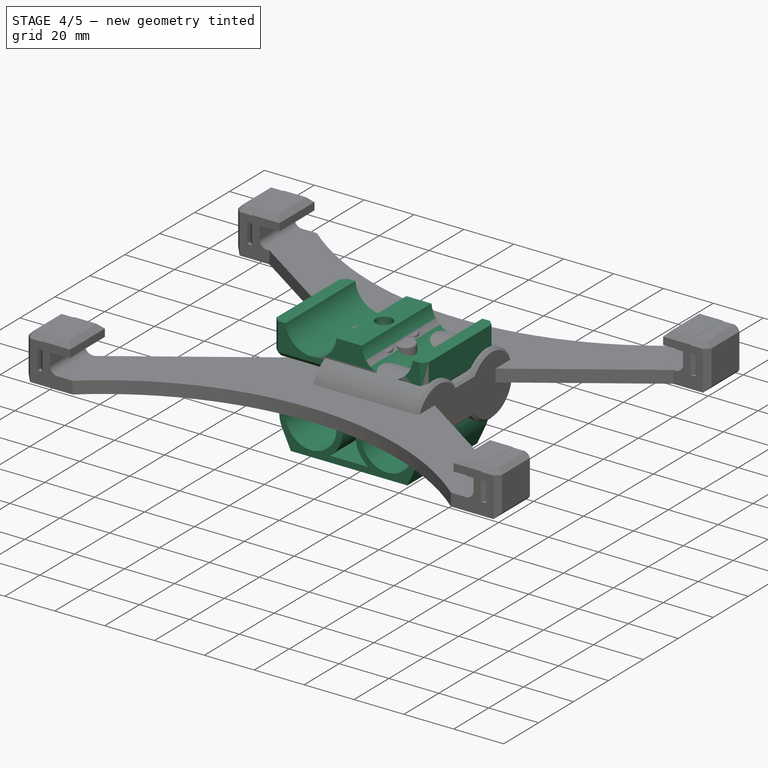
[diagram: stage 4 of 5 — iso view after this stage's code; geometry added in this stage tinted green]
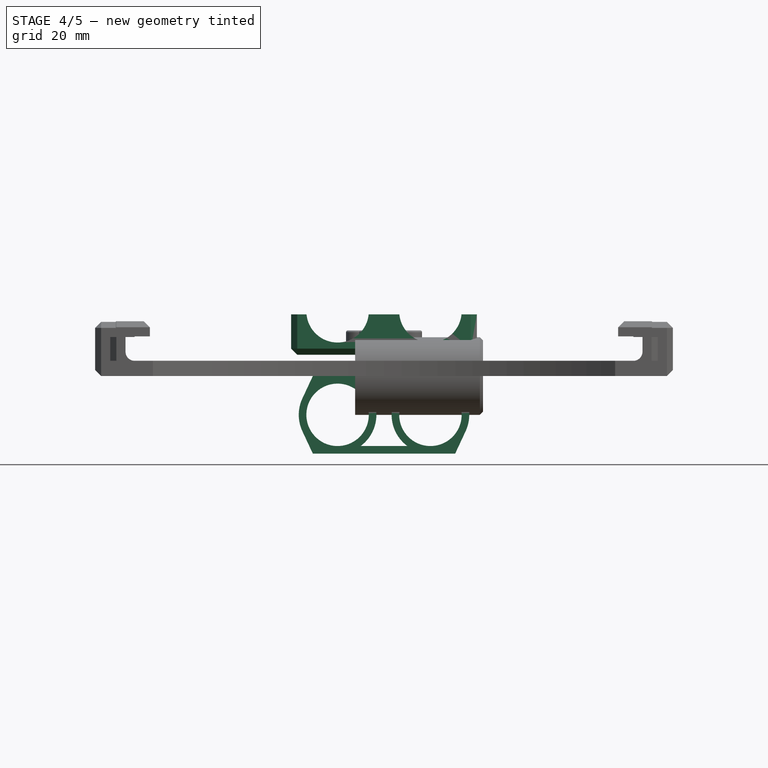
[diagram: stage 4 of 5 — front view after this stage's code; geometry added in this stage tinted green]
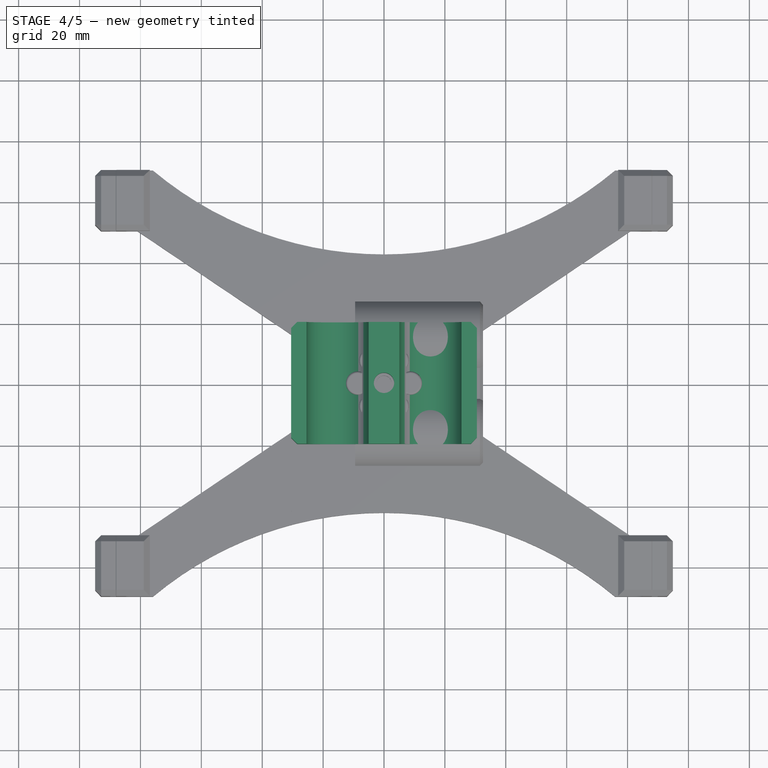
[diagram: stage 4 of 5 — top view after this stage's code; geometry added in this stage tinted green]
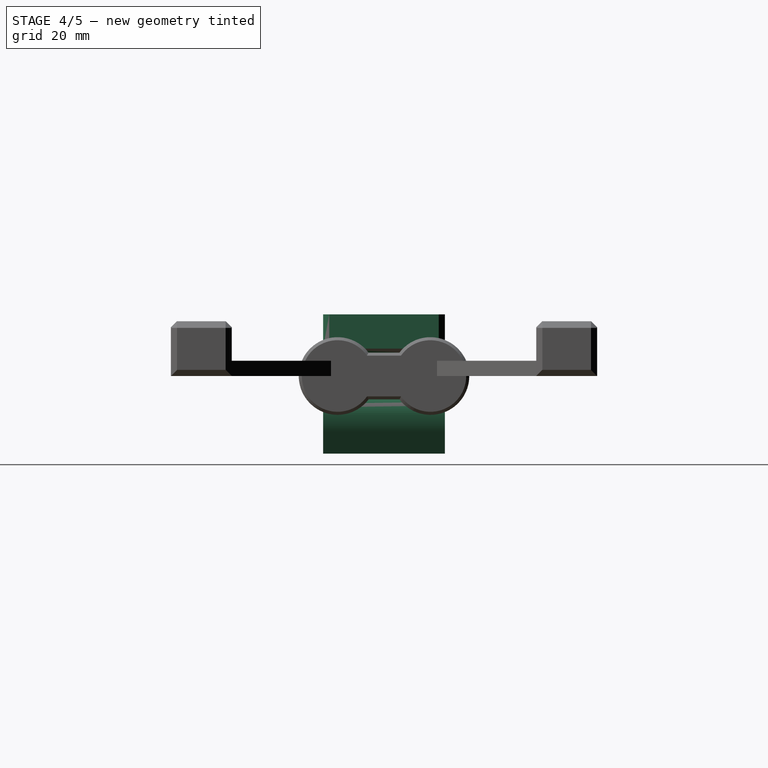
[diagram: stage 4 of 5 — right view after this stage's code; geometry added in this stage tinted green]
FEATURE [PartDesign::Body] Body001  label="pipe mount"
  AutoGroupSolids = false
  ClaimAllChildren = false
  ExportMode = 0
  Group = -> [Sketch002,Pad001,Sketch003,Pocket]
  Origin = -> Origin
  Placement = pos=(0,0,7) rot=(0,0,1;0rad)
  Tip = -> Pocket
  TreeRank = 0
  _ExportChildren = -> [Pad001,Pocket]
  _GroupVersion = 1
  expr: Placement.Base.z = <<dim>>.lock_raise_z
FEATURE [PartDesign::FeatureBase] Clone
  BaseFeature = -> Body001
  NewSolid = false
  Placement = pos=(0,0,7) rot=(0,0,1;0rad)
  Suppress = false
  TreeRank = 0
FEATURE [PartDesign::Plane] DatumPlane
  AttachmentSupport = -> [Clone]
  Length = 72.0454
  MapMode = 5
  MinimumLength = 10
  MinimumWidth = 10
  Placement = pos=(0,0,7) rot=(1,0,0;3.14159rad)
  ResizeMode = 0
  Support = -> [Clone]
  TreeRank = 0
  Width = 61.0454
FEATURE [Sketcher::SketchObject] Sketch007
  ArcFitTolerance = 0
  AttachmentSupport = -> [DatumPlane]
  ExternalBSplineMaxDegree = 0
  ExternalBSplineTolerance = 0
  FullyConstrained = true
  InternalTolerance = 1e-06
  MakeInternals = false
  MapMode = 5
  Placement = pos=(0,0,7) rot=(1,0,0;3.14159rad)
  Support = -> [DatumPlane]
  TreeRank = 0
  expr: Constraints[1] = Spreadsheet.mount_screw_M6_shank_d
  sketch-geometry (1):
    g0: Circle CenterX=0 CenterY=0 CenterZ=0 NormalX=0 NormalY=0 NormalZ=1 AngleXU=0 Radius=3.35
  constraints (2):
    c: Coincident(g0,g-1)
    c: Diameter(g0) = 6.7
FEATURE [PartDesign::Pocket] Pocket001  label="mount screw hole 1"
  AddSubType = 1
  AutoTaperInnerAngle = false
  BaseFeature = -> Clone
  CheckUpToFaceLimits = true
  ClaimChildren = false
  Fit = 0
  FitJoin = 0
  InnerFit = 0
  InnerFitJoin = 0
  Length = 5
  Length2 = 100
  NewSolid = false
  Placement = pos=(0,0,7) rot=(0,0,1;0rad)
  Profile = -> Sketch007
  Refine = true
  Suppress = false
  TaperInnerAngle = 0
  TaperInnerAngleRev = 0
  TreeRank = 0
  Type = 2
  _ProfileBasedVersion = 0
  _Version = 0
FEATURE [PartDesign::Chamfer] Chamfer
  AddSubType = 0
  Angle = 45
  Base = -> Pocket001 [Edge10,Edge11,Edge9,Edge1,Edge13,Edge2,Edge8,Edge26]
  BaseFeature = -> Pocket001
  ChamferType = 0
  FlipDirection = false
  NewSolid = false
  Placement = pos=(0,0,7) rot=(0,0,1;0rad)
  Refine = true
  Size = 2
  Size2 = 1
  SupportTransform = false
  Suppress = false
  TreeRank = 0
FEATURE [Sketcher::SketchObject] Sketch008  label="base button sk"
  ArcFitTolerance = 0
  AttachmentSupport = -> [XY_Plane004]
  ExternalBSplineMaxDegree = 0
  ExternalBSplineTolerance = 0
  FullyConstrained = true
  InternalTolerance = 1e-06
  MakeInternals = false
  MapMode = 5
  Support = -> [XY_Plane004]
  TreeRank = 0
  expr: Constraints[2] = <<dim>>.button_d_in
  expr: Constraints[3] = <<dim>>.button_d_out
  expr: Constraints[67] = Spreadsheet.mount_screw_M6_shank_d
  sketch-geometry (22):
    g0: Circle [constr] CenterX=0 CenterY=0 CenterZ=0 NormalX=0 NormalY=0 NormalZ=1 AngleXU=0 Radius=7.5
    g1: Circle [constr] CenterX=0 CenterY=0 CenterZ=0 NormalX=0 NormalY=0 NormalZ=1 AngleXU=0 Radius=12.5
    g2: LineSegment [constr] StartX=4.33013 StartY=7.5 StartZ=0 EndX=-4.33013 EndY=7.5 EndZ=0
    g3: LineSegment [constr] StartX=-4.33013 StartY=7.5 StartZ=0 EndX=-8.66025 EndY=0 EndZ=0
    g4: LineSegment [constr] StartX=-8.66025 StartY=0 StartZ=0 EndX=-4.33013 EndY=-7.5 EndZ=0
    g5: LineSegment [constr] StartX=-4.33013 StartY=-7.5 StartZ=0 EndX=4.33013 EndY=-7.5 EndZ=0
    g6: LineSegment [constr] StartX=4.33013 StartY=-7.5 StartZ=0 EndX=8.66025 EndY=0 EndZ=0
    g7: LineSegment [constr] StartX=8.66025 StartY=0 StartZ=0 EndX=4.33013 EndY=7.5 EndZ=0
    g8: Circle [constr] CenterX=0 CenterY=0 CenterZ=0 NormalX=0 NormalY=0 NormalZ=1 AngleXU=0 Radius=8.66025
    g9: ArcOfCircle CenterX=4.33013 CenterY=7.5 CenterZ=0 NormalX=0 NormalY=0 NormalZ=1 AngleXU=0 Radius=3.83975 StartAngle=5.53604 EndAngle=9.12472
    g10: ArcOfCircle CenterX=8.66025 CenterY=0 CenterZ=0 NormalX=0 NormalY=0 NormalZ=1 AngleXU=0 Radius=3.83975 StartAngle=4.48884 EndAngle=8.07753
    g11: ArcOfCircle CenterX=4.33013 CenterY=-7.5 CenterZ=0 NormalX=0 NormalY=0 NormalZ=1 AngleXU=0 Radius=3.83975 StartAngle=3.44165 EndAngle=7.03033
    g12: ArcOfCircle CenterX=-4.33013 CenterY=-7.5 CenterZ=0 NormalX=0 NormalY=0 NormalZ=1 AngleXU=0 Radius=3.83975 StartAngle=2.39445 EndAngle=5.98313
    g13: ArcOfCircle CenterX=-8.66025 CenterY=0 CenterZ=0 NormalX=0 NormalY=0 NormalZ=1 AngleXU=0 Radius=3.83975 StartAngle=1.34725 EndAngle=4.93593
    g14: ArcOfCircle CenterX=-4.33013 CenterY=7.5 CenterZ=0 NormalX=0 NormalY=0 NormalZ=1 AngleXU=0 Radius=3.83975 StartAngle=0.300054 EndAngle=3.88874
    g15: ArcOfCircle CenterX=2e-16 CenterY=8.66025 CenterZ=0 NormalX=0 NormalY=0 NormalZ=1 AngleXU=0 Radius=0.662423 StartAngle=3.17985 EndAngle=6.24493
    g16: ArcOfCircle CenterX=7.5 CenterY=4.33013 CenterZ=0 NormalX=0 NormalY=0 NormalZ=1 AngleXU=0 Radius=0.662423 StartAngle=2.13265 EndAngle=5.19773
    g17: ArcOfCircle CenterX=7.5 CenterY=-4.33013 CenterZ=0 NormalX=0 NormalY=0 NormalZ=1 AngleXU=0 Radius=0.662423 StartAngle=1.08545 EndAngle=4.15054
    g18: ArcOfCircle CenterX=7e-16 CenterY=-8.66025 CenterZ=0 NormalX=0 NormalY=0 NormalZ=1 AngleXU=0 Radius=0.662423 StartAngle=0.0382544 EndAngle=3.10334
    g19: ArcOfCircle CenterX=-7.5 CenterY=-4.33013 CenterZ=0 NormalX=0 NormalY=0 NormalZ=1 AngleXU=0 Radius=0.662423 StartAngle=5.27424 EndAngle=8.33933
    g20: ArcOfCircle CenterX=-7.5 CenterY=4.33013 CenterZ=0 NormalX=0 NormalY=0 NormalZ=1 AngleXU=0 Radius=0.662423 StartAngle=4.22704 EndAngle=7.29213
    g21: Circle CenterX=0 CenterY=0 CenterZ=0 NormalX=0 NormalY=0 NormalZ=1 AngleXU=0 Radius=3.35
  constraints (64):
    c: Coincident(g0,g-1)
    c: Coincident(g1,g-1)
    c: Diameter(g0) = 15
    c: Diameter(g1) = 25
    c: Coincident(g2,g3)
    c: Coincident(g3,g4)
    c: Coincident(g4,g5)
    c: Coincident(g5,g6)
    c: Coincident(g6,g7)
    c: Coincident(g7,g2)
    c: Equal(g2, g3-g7) x5
    c: PointOnObject(g2,g8)
    c: PointOnObject(g3,g8)
    c: PointOnObject(g4,g8)
    c: PointOnObject(g5,g8)
    c: PointOnObject(g6,g8)
    c: PointOnObject(g7,g8)
    c: Coincident(g8,g-1)
    c: Horizontal(g2)
    c: Tangent(g0,g2)
    c: Coincident(g9,g2)
    c: PointOnObject(g9,g8)
    c: PointOnObject(g9,g8)
    c: Tangent(g9,g1)
    c: Coincident(g10,g6)
    c: PointOnObject(g10,g8)
    c: PointOnObject(g10,g8)
    c: Coincident(g11,g5)
    c: PointOnObject(g11,g8)
    c: PointOnObject(g11,g8)
    c: Coincident(g12,g4)
    c: PointOnObject(g12,g8)
    c: PointOnObject(g12,g8)
    c: Coincident(g13,g3)
    c: PointOnObject(g13,g8)
    c: PointOnObject(g13,g8)
    c: Coincident(g14,g2)
    c: PointOnObject(g14,g8)
    c: PointOnObject(g14,g8)
    c: Equal(g9,g10)
    c: Equal(g10,g11)
    c: Equal(g11,g12)
    c: Equal(g12,g13)
    c: Equal(g13,g14)
    c: PointOnObject(g15,g8)
    c: Coincident(g15,g14)
    c: Coincident(g15,g9)
    c: PointOnObject(g16,g8)
    c: Coincident(g16,g9)
    c: Coincident(g16,g10)
    c: PointOnObject(g17,g8)
    c: Coincident(g17,g10)
    c: Coincident(g17,g11)
    c: PointOnObject(g18,g8)
    c: Coincident(g18,g11)
    c: Coincident(g18,g12)
    c: PointOnObject(g19,g8)
    c: Coincident(g19,g12)
    c: Coincident(g19,g13)
    c: PointOnObject(g20,g8)
    c: Coincident(g20,g13)
    c: Coincident(g20,g14)
    c: Coincident(g21,g-1)
    c: Diameter(g21) = 6.7
FEATURE [PartDesign::Pad] Pad004  label="base button"
  AddSubType = 0
  AutoTaperInnerAngle = false
  CheckUpToFaceLimits = true
  ClaimChildren = false
  Direction = (1,1,1)
  Fit = 0
  FitJoin = 0
  InnerFit = 0
  InnerFitJoin = 0
  Length = 15
  Length2 = 100
  NewSolid = false
  Profile = -> Sketch008
  Refine = true
  Suppress = false
  TaperInnerAngle = 0
  TaperInnerAngleRev = 0
  TreeRank = 0
  Type = 0
  _ProfileBasedVersion = 0
  expr: Length = <<dim>>.button_h
FEATURE [Sketcher::SketchObject] Sketch009  label="nut hole sk"
  ArcFitTolerance = 0
  AttachmentSupport = -> [Pad004]
  ExternalBSplineMaxDegree = 0
  ExternalBSplineTolerance = 0
  FullyConstrained = true
  InternalTolerance = 1e-06
  MakeInternals = false
  MapMode = 5
  Placement = pos=(0,0,15) rot=(0,0,1;0rad)
  Support = -> [Pad004]
  TreeRank = 0
  expr: Constraints[19] = Spreadsheet.mount_screw_M6_head_circrad
  sketch-geometry (7):
    g0: LineSegment StartX=2.825 StartY=-4.89304 StartZ=0 EndX=5.65 EndY=-9e-16 EndZ=0
    g1: LineSegment StartX=5.65 StartY=-9e-16 StartZ=0 EndX=2.825 EndY=4.89304 EndZ=0
    g2: LineSegment StartX=2.825 StartY=4.89304 StartZ=0 EndX=-2.825 EndY=4.89304 EndZ=0
    g3: LineSegment StartX=-2.825 StartY=4.89304 StartZ=0 EndX=-5.65 EndY=0 EndZ=0
    g4: LineSegment StartX=-5.65 StartY=0 StartZ=0 EndX=-2.825 EndY=-4.89304 EndZ=0
    g5: LineSegment StartX=-2.825 StartY=-4.89304 StartZ=0 EndX=2.825 EndY=-4.89304 EndZ=0
    g6: Circle [constr] CenterX=0 CenterY=0 CenterZ=0 NormalX=0 NormalY=0 NormalZ=1 AngleXU=0 Radius=5.65
  constraints (16):
    c: Coincident(g0,g1)
    c: Coincident(g1,g2)
    c: Coincident(g2,g3)
    c: Coincident(g3,g4)
    c: Coincident(g4,g5)
    c: Coincident(g5,g0)
    c: Equal(g0, g1-g5) x5
    c: PointOnObject(g0,g6)
    c: PointOnObject(g1,g6)
    c: PointOnObject(g2,g6)
    c: PointOnObject(g3,g6)
    c: PointOnObject(g4,g6)
    c: PointOnObject(g5,g6)
    c: Coincident(g6,g-1)
    c: Horizontal(g2)
    c: Diameter(g6) = 11.3
FEATURE [PartDesign::Pocket] Pocket002  label="nut hole"
  AddSubType = 1
  AutoTaperInnerAngle = false
  BaseFeature = -> Pad004
  CheckUpToFaceLimits = true
  ClaimChildren = false
  Fit = 0
  FitJoin = 0
  InnerFit = 0
  InnerFitJoin = 0
  Length = 5
  Length2 = 100
  NewSolid = false
  Profile = -> Sketch009
  Refine = true
  Suppress = false
  TaperInnerAngle = 0
  TaperInnerAngleRev = 0
  TreeRank = 0
  Type = 0
  _ProfileBasedVersion = 0
  _Version = 0
  expr: Length = Spreadsheet.mount_screw_M6_head_depth
FEATURE [Sketcher::SketchObject] Sketch010  label="shape sk"
  ArcFitTolerance = 0
  AttachmentSupport = -> [XZ_Plane004]
  ExternalBSplineMaxDegree = 0
  ExternalBSplineTolerance = 0
  ExternalGeometry = -> [Pocket002]
  FullyConstrained = true
  InternalTolerance = 1e-06
  MakeInternals = false
  MapMode = 5
  Placement = pos=(0,0,0) rot=(1,0,0;1.5708rad)
  Support = -> [XZ_Plane004]
  TreeRank = 0
  expr: Constraints[11] = Spreadsheet.mount_screw_M6_shank_d
  expr: Constraints[7] = <<dim>>.button_h / 3
  sketch-geometry (4):
    g0: ArcOfCircle CenterX=18.2207 CenterY=0 CenterZ=0 NormalX=0 NormalY=0 NormalZ=1 AngleXU=0 Radius=11.5207 StartAngle=2.09043 EndAngle=3.14159
    g1: LineSegment StartX=6.7 StartY=-2.30983e-11 StartZ=0 EndX=13.5 EndY=-2.30983e-11 EndZ=0
    g2: LineSegment StartX=13.5 StartY=-2.30983e-11 StartZ=0 EndX=13.5 EndY=10 EndZ=0
    g3: LineSegment StartX=13.5 StartY=10 StartZ=0 EndX=12.5 EndY=10 EndZ=0
  constraints (13):
    c: PointOnObject(g0,g-1)
    c: Coincident(g1,g0)
    c: Horizontal(g1)
    c: Coincident(g2,g1)
    c: Vertical(g2)
    c: Coincident(g3,g2)
    c: Horizontal(g3)
    c: DistanceY(g0,g-3) = 5
    c: DistanceX(g3,g3) = 1
    c: Coincident(g3,g0)
    c: Vertical(g0,g-3)
    c: DistanceX(g-1,g0) = 6.7
    c: PointOnObject(g0,g-1)
FEATURE [PartDesign::Groove] Groove  label="shape"
  AddSubType = 1
  Angle = 360
  Axis = (0,-2e-16,1)
  Base = (0,0,0)
  BaseFeature = -> Pocket002
  ClaimChildren = false
  Fit = 0
  FitJoin = 0
  InnerFit = 0
  InnerFitJoin = 0
  NewSolid = false
  Profile = -> Sketch010
  ReferenceAxis = -> Sketch010 [V_Axis]
  Refine = true
  Suppress = false
  TreeRank = 0
  _ProfileBasedVersion = 0
FEATURE [PartDesign::Body] Body004  label="button raw"
  AutoGroupSolids = false
  ClaimAllChildren = false
  ExportMode = 0
  Group = -> [Sketch008,Pad004,Sketch009,Pocket002,Sketch010,Groove]
  Origin = -> Origin004
  Tip = -> Groove
  TreeRank = 0
  _ExportChildren = -> [Pad004,Pocket002,Groove]
  _GroupVersion = 1
FEATURE [Part::Fillet] Fillet
  Base = -> Groove
  EdgeLinks = -> Groove [Edge5,Edge28,Edge30,Edge31,Edge32,Edge33,Edge34,Edge35,Edge36,Edge37,Edge38,Edge39]
  Edges = 12 edges r=0.7: [Edge5,Edge28,Edge30,Edge31,Edge32,Edge33,Edge34,Edge35,Edge36,Edge37,Edge38,Edge39]
  TreeRank = 0
FEATURE [Part::Fillet] Fillet001  label="button"
  Base = -> Fillet
  EdgeLinks = -> Fillet [Edge3,Edge5,Edge6,Edge8,Edge13,Edge14,Edge15,Edge16,Edge17,Edge18,Edge19,Edge20,Edge21,Edge22,Edge23,Edge24,Edge25,Edge26,Edge27,Edge28,Edge29,Edge30]
  Edges = 22 edges r=0.5: [Edge3,Edge5,Edge6,Edge8,Edge13,Edge14,Edge15,Edge16,Edge17,Edge18,Edge19,Edge20,Edge21,Edge22,Edge23,Edge24,Edge25,Edge26,Edge27,Edge28,Edge29,Edge30]
  TreeRank = 0
FEATURE [Sketcher::SketchObject] Sketch021
  ArcFitTolerance = 0
  AttachmentSupport = -> [XZ_Plane009]
  ExternalBSplineMaxDegree = 0
  ExternalBSplineTolerance = 0
  FullyConstrained = true
  InternalTolerance = 1e-06
  MakeInternals = false
  MapMode = 5
  Placement = pos=(0,0,0) rot=(1,0,0;1.5708rad)
  Support = -> [XZ_Plane009]
  TreeRank = 0
  expr: Constraints[10] = <<dim>>.pipe_dia + <<dim>>.pipe_dist
  expr: Constraints[14] = -<<dim>>.pipe_slider_thickness
  expr: Constraints[1] = <<dim>>.pipe_dia + 2 * <<dim>>.pipe_slider_thickness
  expr: Constraints[38] = <<dim>>.pipe_slider_thickness
  expr: Constraints[8] = <<dim>>.pipe_dia
  sketch-geometry (16):
    g0: LineSegment StartX=23.3726 StartY=0 StartZ=0 EndX=-23.3726 EndY=0 EndZ=0
    g1: LineSegment StartX=-7.66712 StartY=-2.5 StartZ=0 EndX=7.66712 EndY=-2.5 EndZ=0
    g2: ArcOfCircle CenterX=-15.25 CenterY=-12.75 CenterZ=0 NormalX=0 NormalY=0 NormalZ=1 AngleXU=0 Radius=12.75 StartAngle=5.34933 EndAngle=7.21705
    g3: ArcOfCircle CenterX=15.25 CenterY=-12.75 CenterZ=0 NormalX=0 NormalY=0 NormalZ=1 AngleXU=0 Radius=12.75 StartAngle=2.20773 EndAngle=4.07545
    g4: Circle CenterX=15.25 CenterY=-12.75 CenterZ=0 NormalX=0 NormalY=0 NormalZ=1 AngleXU=0 Radius=10.25
    g5: Circle CenterX=-15.25 CenterY=-12.75 CenterZ=0 NormalX=0 NormalY=0 NormalZ=1 AngleXU=0 Radius=10.25
    g6: GeomPoint [constr] X=0 Y=-2.5 Z=0
    g7: LineSegment StartX=23.3726 StartY=0 StartZ=0 EndX=26.8054 EndY=-7.36162 EndZ=0
    g8: LineSegment StartX=-23.3726 StartY=0 StartZ=0 EndX=-26.8054 EndY=-7.36162 EndZ=0
    g9: LineSegment [constr] StartX=7.66712 StartY=-2.5 StartZ=0 EndX=15.25 EndY=-2.5 EndZ=0
    g10: LineSegment StartX=-7.66712 StartY=-23 StartZ=0 EndX=7.66712 EndY=-23 EndZ=0
    g11: LineSegment StartX=-26.8054 StartY=-18.1384 StartZ=0 EndX=-23.3726 EndY=-25.5 EndZ=0
    g12: LineSegment StartX=-23.3726 StartY=-25.5 StartZ=0 EndX=23.3726 EndY=-25.5 EndZ=0
    g13: LineSegment StartX=23.3726 StartY=-25.5 StartZ=0 EndX=26.8054 EndY=-18.1384 EndZ=0
    g14: ArcOfCircle CenterX=-15.25 CenterY=-12.75 CenterZ=0 NormalX=0 NormalY=0 NormalZ=1 AngleXU=0 Radius=12.75 StartAngle=2.70526 EndAngle=3.57792
    g15: ArcOfCircle CenterX=15.25 CenterY=-12.75 CenterZ=0 NormalX=0 NormalY=0 NormalZ=1 AngleXU=0 Radius=12.75 StartAngle=5.84685 EndAngle=6.71952
  constraints (41):
    c: Symmetric(g0,g0,g-2)
    c: Diameter(g3) = 25.5
    c: Equal(g3,g2)
    c: Coincident(g1,g3)
    c: Coincident(g1,g2)
    c: Coincident(g4,g3)
    c: Coincident(g5,g2)
    c: Equal(g5,g4)
    c: Diameter(g4) = 20.5
    c: Horizontal(g2,g3)
    c: DistanceX(g2,g3) = 30.5
    c: PointOnObject(g0,g-1)
    c: PointOnObject(g6,g-2)
    c: PointOnObject(g6,g1)
    c: DistanceY(g6) = -2.5
    c: Coincident(g0,g7)
    c: Coincident(g8,g0)
    c: Coincident(g9,g1)
    c: PointOnObject(g9,g4)
    c: Tangent(g9,g4)
    c: Horizontal(g9,g1)
    c: Symmetric(g1,g1,g-2)
    c: Angle(g0,g7) = 2.00713
    c: Horizontal(g10)
    c: Equal(g1,g10)
    c: Coincident(g2,g10)
    c: Coincident(g12,g11)
    c: Horizontal(g12)
    c: Coincident(g13,g12)
    c: Coincident(g14,g2)
    c: Tangent(g14,g11) = -1.5708
    c: Equal(g14,g2)
    c: Vertical(g11,g0)
    c: Coincident(g3,g10)
    c: Coincident(g15,g3)
    c: Tangent(g15,g13) = -1.5708
    c: Vertical(g13,g7)
    c: Equal(g15,g3)
    c: DistanceY(g12,g3) = 2.5
    c: Tangent(g15,g7) = 1.5708
    c: Tangent(g14,g8) = -1.5708
FEATURE [PartDesign::Pad] Pad007
  AddSubType = 0
  AutoTaperInnerAngle = false
  CheckUpToFaceLimits = true
  ClaimChildren = false
  Direction = (1,1,1)
  Fit = 0
  FitJoin = 0
  InnerFit = 0
  InnerFitJoin = 0
  Length = 40
  Length2 = 100
  Midplane = true
  NewSolid = false
  Placement = pos=(0,0,0) rot=(1,0,0;1.5708rad)
  Profile = -> Sketch021
  Refine = true
  Suppress = false
  TaperInnerAngle = 0
  TaperInnerAngleRev = 0
  TreeRank = 0
  Type = 0
  _ProfileBasedVersion = 0
  expr: Length = <<dim>>.pipe_slider_width
FEATURE [Part::Fillet] Fillet003  label="slide button fillet"
  Base = -> Fillet002
  EdgeLinks = -> Fillet002 [Edge3,Edge5,Edge6,Edge8,Edge13,Edge14,Edge15,Edge16,Edge17,Edge18,Edge19,Edge20,Edge21,Edge22,Edge23,Edge24,Edge25,Edge26,Edge27,Edge28,Edge29,Edge30]
  Edges = 22 edges r=0.5: [Edge3,Edge5,Edge6,Edge8,Edge13,Edge14,Edge15,Edge16,Edge17,Edge18,Edge19,Edge20,Edge21,Edge22,Edge23,Edge24,Edge25,Edge26,Edge27,Edge28,Edge29,Edge30]
  TreeRank = 0
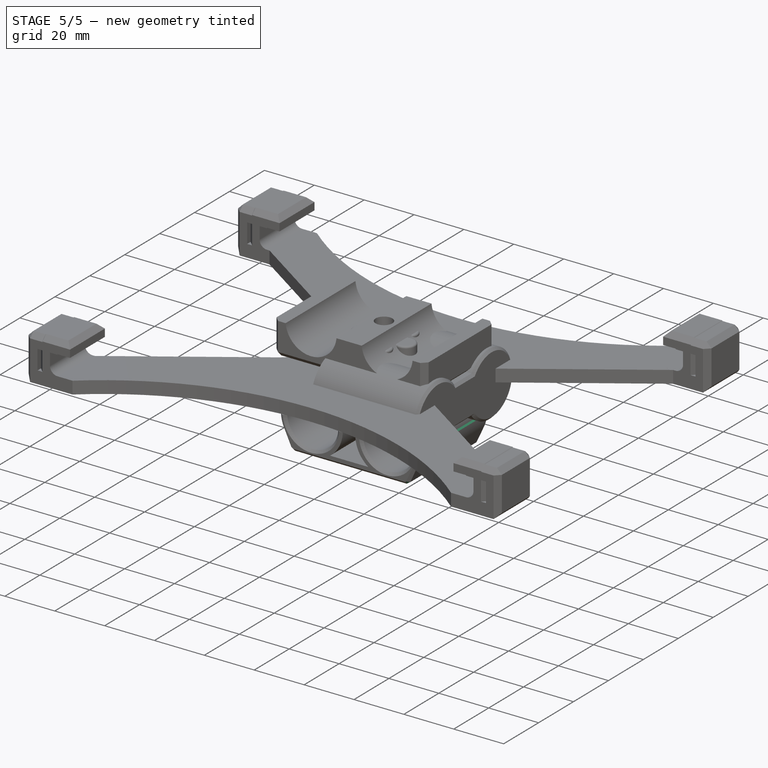
[diagram: stage 5 of 5 — iso view after this stage's code; geometry added in this stage tinted green]
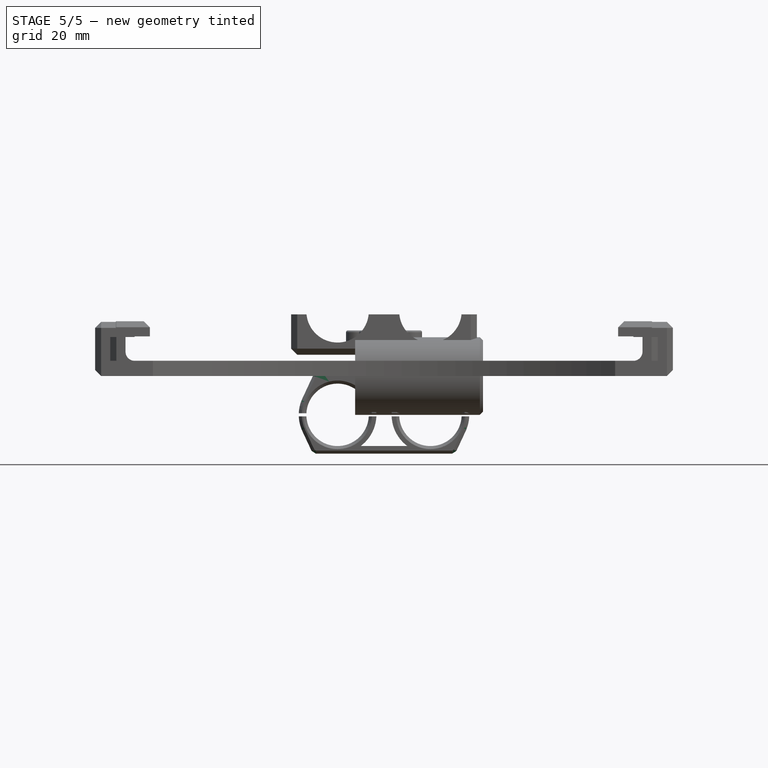
[diagram: stage 5 of 5 — front view after this stage's code; geometry added in this stage tinted green]
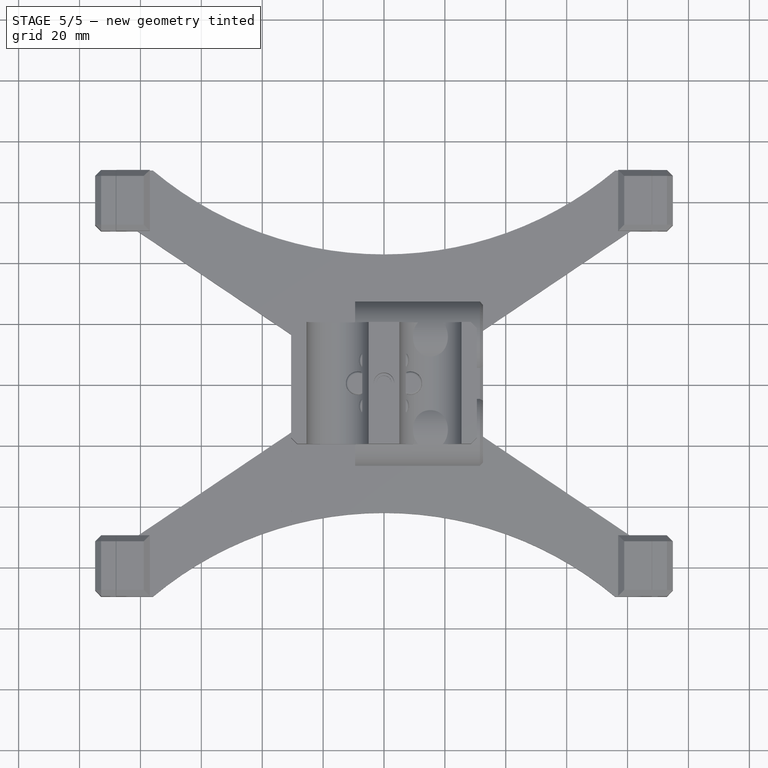
[diagram: stage 5 of 5 — top view after this stage's code; geometry added in this stage tinted green]
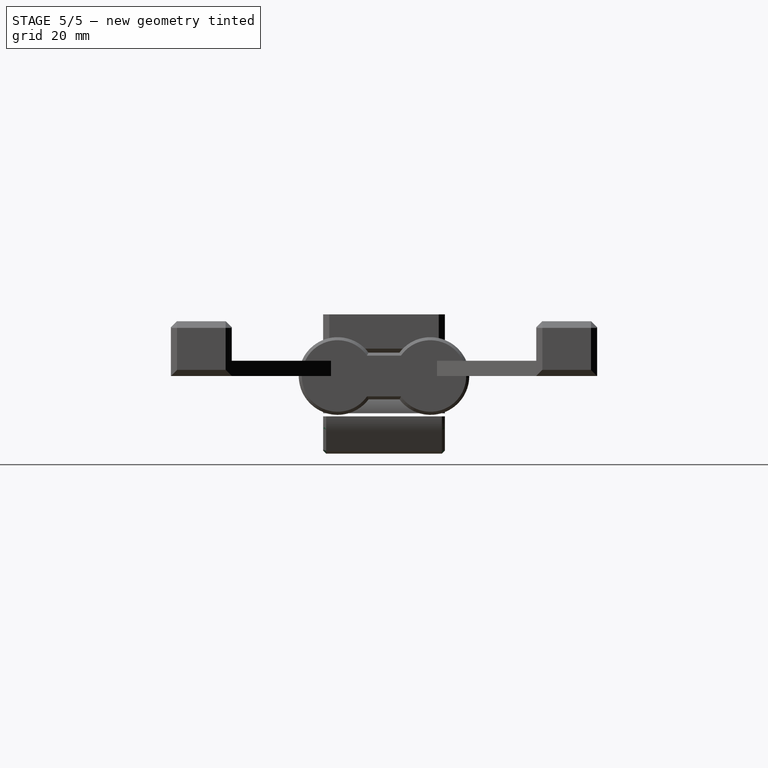
[diagram: stage 5 of 5 — right view after this stage's code; geometry added in this stage tinted green]
FEATURE [PartDesign::Pad] Pad008
  AddSubType = 0
  AutoTaperInnerAngle = false
  BaseFeature = -> Pad007
  CheckUpToFaceLimits = true
  ClaimChildren = false
  Direction = (1,1,1)
  Fit = 0
  FitJoin = 0
  InnerFit = 0
  InnerFitJoin = 0
  Length = 4
  Length2 = 100
  NewSolid = false
  Placement = pos=(0,0,0) rot=(1,0,0;1.5708rad)
  Profile = -> Pad007 [Face1]
  Refine = true
  Suppress = false
  TaperInnerAngle = 0
  TaperInnerAngleRev = 0
  TreeRank = 0
  Type = 0
  _ProfileBasedVersion = 0
  expr: Length = <<dim>>.mount_screw_M5_head_depth
FEATURE [PartDesign::Pocket] Pocket007
  AddSubType = 1
  AutoTaperInnerAngle = false
  BaseFeature = -> Pad008
  CheckUpToFaceLimits = true
  ClaimChildren = false
  Fit = 0
  FitJoin = 0
  InnerFit = 0
  InnerFitJoin = 0
  Length = 5
  Length2 = 100
  NewSolid = false
  Placement = pos=(0,0,0) rot=(1,0,0;1.5708rad)
  Profile = -> Sketch022
  Refine = true
  Suppress = false
  TaperInnerAngle = 0
  TaperInnerAngleRev = 0
  TreeRank = 0
  Type = 2
  _ProfileBasedVersion = 0
  _Version = 0
FEATURE [Sketcher::SketchObject] Sketch023
  ArcFitTolerance = 0
  AttachmentSupport = -> [Pocket007]
  ExternalBSplineMaxDegree = 0
  ExternalBSplineTolerance = 0
  FullyConstrained = true
  InternalTolerance = 1e-06
  MakeInternals = false
  MapMode = 5
  Placement = pos=(0,-9e-16,4) rot=(0,0,1;3.14159rad)
  Support = -> [Pocket007]
  TreeRank = 0
  expr: Constraints[19] = <<dim>>.mount_screw_M5_head_circrad
  sketch-geometry (7):
    g0: LineSegment StartX=2.225 StartY=-3.85381 StartZ=0 EndX=4.45 EndY=4.6905e-12 EndZ=0
    g1: LineSegment StartX=4.45 StartY=4.6905e-12 StartZ=0 EndX=2.225 EndY=3.85381 EndZ=0
    g2: LineSegment StartX=2.225 StartY=3.85381 StartZ=0 EndX=-2.225 EndY=3.85381 EndZ=0
    g3: LineSegment StartX=-2.225 StartY=3.85381 StartZ=0 EndX=-4.45 EndY=5.489e-13 EndZ=0
    g4: LineSegment StartX=-4.45 StartY=5.489e-13 StartZ=0 EndX=-2.225 EndY=-3.85381 EndZ=0
    g5: LineSegment StartX=-2.225 StartY=-3.85381 StartZ=0 EndX=2.225 EndY=-3.85381 EndZ=0
    g6: Circle [constr] CenterX=0 CenterY=0 CenterZ=0 NormalX=0 NormalY=0 NormalZ=1 AngleXU=0 Radius=4.45
  constraints (16):
    c: Coincident(g0,g1)
    c: Coincident(g1,g2)
    c: Coincident(g2,g3)
    c: Coincident(g3,g4)
    c: Coincident(g4,g5)
    c: Coincident(g5,g0)
    c: Equal(g0, g1-g5) x5
    c: PointOnObject(g0,g6)
    c: PointOnObject(g1,g6)
    c: PointOnObject(g2,g6)
    c: PointOnObject(g3,g6)
    c: PointOnObject(g4,g6)
    c: PointOnObject(g5,g6)
    c: Coincident(g6,g-1)
    c: Horizontal(g2)
    c: Diameter(g6) = 8.9
FEATURE [PartDesign::Pocket] Pocket008
  AddSubType = 1
  AutoTaperInnerAngle = false
  BaseFeature = -> Pocket007
  CheckUpToFaceLimits = true
  ClaimChildren = false
  Fit = 0
  FitJoin = 0
  InnerFit = 0
  InnerFitJoin = 0
  Length = 4
  Length2 = 100
  NewSolid = false
  Placement = pos=(0,0,0) rot=(1,0,0;1.5708rad)
  Profile = -> Sketch023
  Refine = true
  Suppress = false
  TaperInnerAngle = 0
  TaperInnerAngleRev = 0
  TreeRank = 0
  Type = 0
  _ProfileBasedVersion = 0
  _Version = 0
  expr: Length = <<dim>>.mount_screw_M5_head_depth
FEATURE [Sketcher::SketchObject] Sketch024
  ArcFitTolerance = 0
  AttachmentSupport = -> [Pocket008]
  ExternalBSplineMaxDegree = 0
  ExternalBSplineTolerance = 0
  FullyConstrained = true
  InternalTolerance = 1e-06
  MakeInternals = false
  MapMode = 5
  Placement = pos=(0,-9e-16,4) rot=(0,0,1;3.14159rad)
  Support = -> [Pocket008]
  TreeRank = 0
  expr: Constraints[1] = <<dim>>.mount_screw_M5_shank_d
  sketch-geometry (1):
    g0: Circle CenterX=0 CenterY=0 CenterZ=0 NormalX=0 NormalY=0 NormalZ=1 AngleXU=0 Radius=2.5
  constraints (2):
    c: Coincident(g0,g-1)
    c: Diameter(g0) = 5
FEATURE [PartDesign::Pocket] Pocket009
  AddSubType = 1
  AutoTaperInnerAngle = false
  BaseFeature = -> Pocket008
  CheckUpToFaceLimits = true
  ClaimChildren = false
  Fit = 0
  FitJoin = 0
  InnerFit = 0
  InnerFitJoin = 0
  Length = 5
  Length2 = 100
  NewSolid = false
  Placement = pos=(0,0,0) rot=(1,0,0;1.5708rad)
  Profile = -> Sketch024
  Refine = true
  Suppress = false
  TaperInnerAngle = 0
  TaperInnerAngleRev = 0
  TreeRank = 0
  Type = 1
  _ProfileBasedVersion = 0
  _Version = 0
FEATURE [PartDesign::Plane] DatumPlane003
  AttachmentOffset = pos=(0,0,-12.25) rot=(0,0,1;0rad)
  AttachmentSupport = -> [Pocket009]
  Length = 10
  MapMode = 5
  MinimumLength = 10
  MinimumWidth = 10
  Placement = pos=(0,2.9e-15,-13.25) rot=(1,0,0;3.14159rad)
  ResizeMode = 0
  Support = -> [Pocket009]
  TreeRank = 0
  Width = 10
  expr: AttachmentOffset.Base.z = -(<<dim>>.pipe_slider_thickness + <<dim>>.pipe_dia / 2) + 0.5
FEATURE [PartDesign::Plane] DatumPlane004
  AttachmentOffset = pos=(0,0,-13.25) rot=(0,0,1;0rad)
  AttachmentSupport = -> [Pocket009]
  Length = 60
  MapMode = 5
  MinimumLength = 10
  MinimumWidth = 10
  Placement = pos=(0,2.7e-15,-12.25) rot=(1,0,0;3.14159rad)
  ResizeMode = 0
  Support = -> [Pocket009]
  TreeRank = 0
  Width = 60
  expr: AttachmentOffset.Base.z = -(<<dim>>.pipe_slider_thickness + <<dim>>.pipe_dia / 2 + 0.5)
FEATURE [PartDesign::Body] Body009  label="pipe slide mount all-in-one"
  AutoGroupSolids = false
  ClaimAllChildren = false
  ExportMode = 0
  Group = -> [Sketch021,Pad007,Sketch022,Pad008,Pocket007,Sketch023,Pocket008,Sketch024,Pocket009,DatumPlane003,DatumPlane004]
  Origin = -> Origin009
  Tip = -> Pocket009
  TreeRank = 0
  _ExportChildren = -> [Pad007,Pad008,Pocket007,Pocket008,Pocket009,DatumPlane003,DatumPlane004]
  _GroupVersion = 1
FEATURE [Part::FeaturePython] Slice  # WARN: FeaturePython — macro-defined, semantics opaque (R4)
  Base = -> Pocket009
  Mode = 1
  Tolerance = 0
  Tools = -> [DatumPlane003,DatumPlane004]
  TreeRank = 0
FEATURE [Part::FeaturePython] Slice_child0  label="top slice"  # WARN: FeaturePython — macro-defined, semantics opaque (R4)
  Base = -> Slice
  FilterType = 1
  Invert = false
  OverrideMaxVal = 0
  TreeRank = 0
  WindowFrom = 80
  WindowTo = 100
  items = 0
FEATURE [Part::FeaturePython] Slice_child5  label="bottom slice"  # WARN: FeaturePython — macro-defined, semantics opaque (R4)
  Base = -> Slice
  FilterType = 1
  Invert = false
  OverrideMaxVal = 0
  TreeRank = 0
  WindowFrom = 80
  WindowTo = 100
  items = 5
FEATURE [App::DocumentObjectGroup] GrExplode_Slice  label="pipe slide mount exploded"
  ClaimAllChildren = true
  ExportMode = 1
  Group = -> [Slice_child0,Slice_child5]
  TreeRank = 0
  _GroupVersion = 1
FEATURE [Part::Chamfer] Chamfer006  label="pipe slide top"
  Base = -> Slice_child0
  EdgeLinks = -> Slice_child0 [Edge5,Edge6,Edge8,Edge10,Edge12,Edge18,Edge20,Edge22,Edge25,Edge27,Edge29,Edge35]
  Edges = 12 edges: [Edge5 r=1,Edge6 r=1,Edge8 r=1,Edge10 r=1,Edge12 r=1,Edge18 r=0.7,Edge20 r=1,Edge22 r=1,Edge25 r=1,Edge27 r=1,Edge29 r=1,Edge35 r=1]
  TreeRank = 0
FEATURE [Part::Chamfer] Chamfer007  label="pipe slide bottom"
  Base = -> Slice_child5
  EdgeLinks = -> Slice_child5 [Edge1,Edge3,Edge6,Edge8,Edge10,Edge16,Edge18,Edge21,Edge27,Edge29,Edge31,Edge33]
  Edges = 12 edges r=1: [Edge1,Edge3,Edge6,Edge8,Edge10,Edge16,Edge18,Edge21,Edge27,Edge29,Edge31,Edge33]
  TreeRank = 0
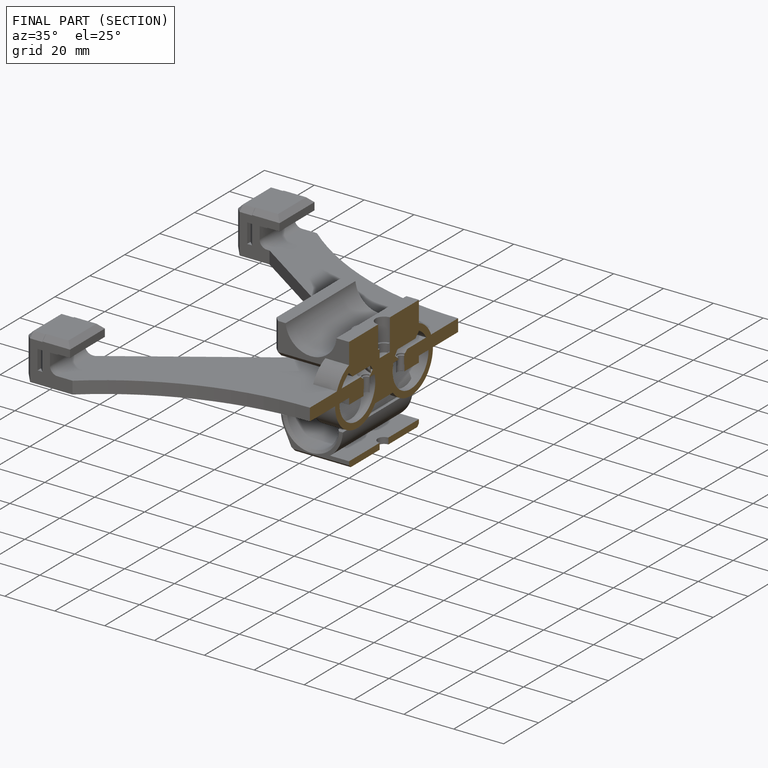
[diagram: finished part — half-section view (interior)]
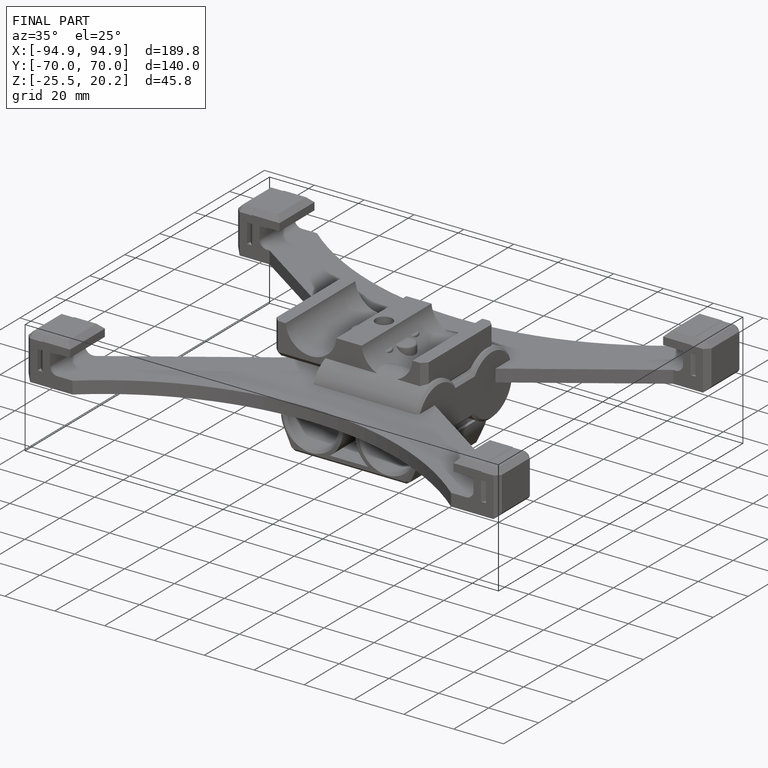
[diagram: finished part — iso view with bounding-box wireframe]
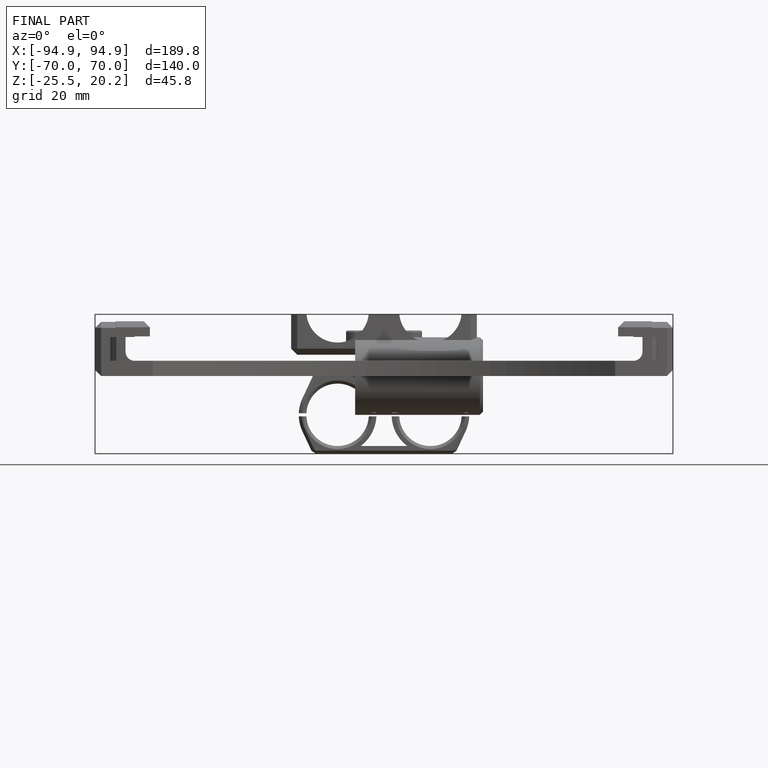
[diagram: finished part — front view with bounding-box wireframe]
